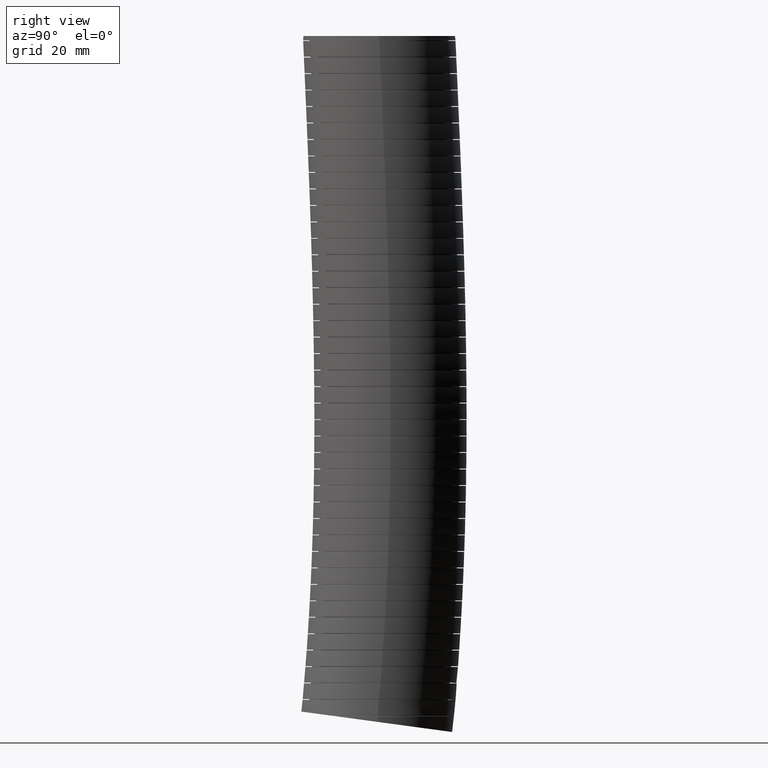
[diagram: clean part render]
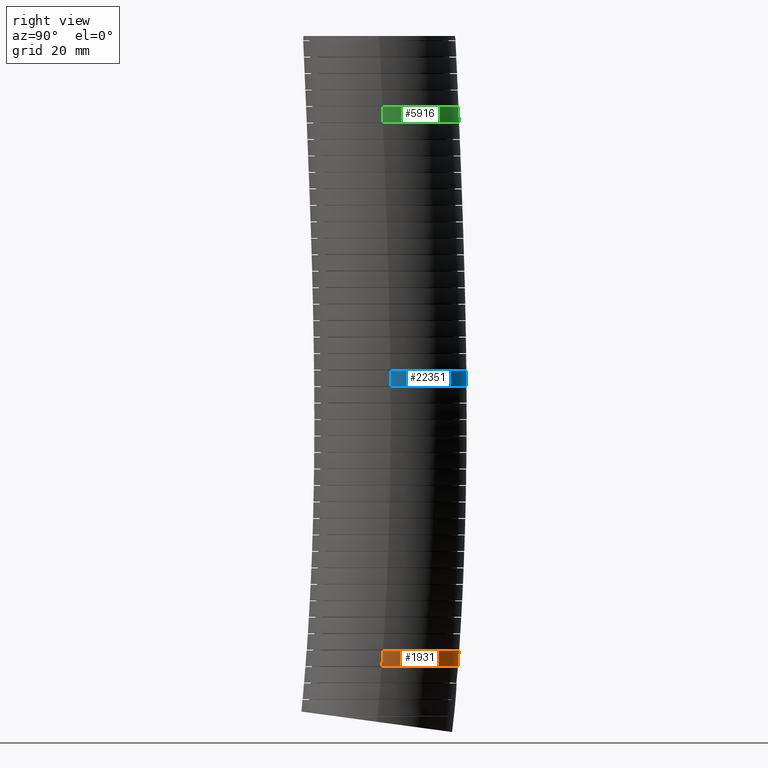
[diagram: same view with three faces highlighted in distinct colors, each labeled with its STEP entity id]
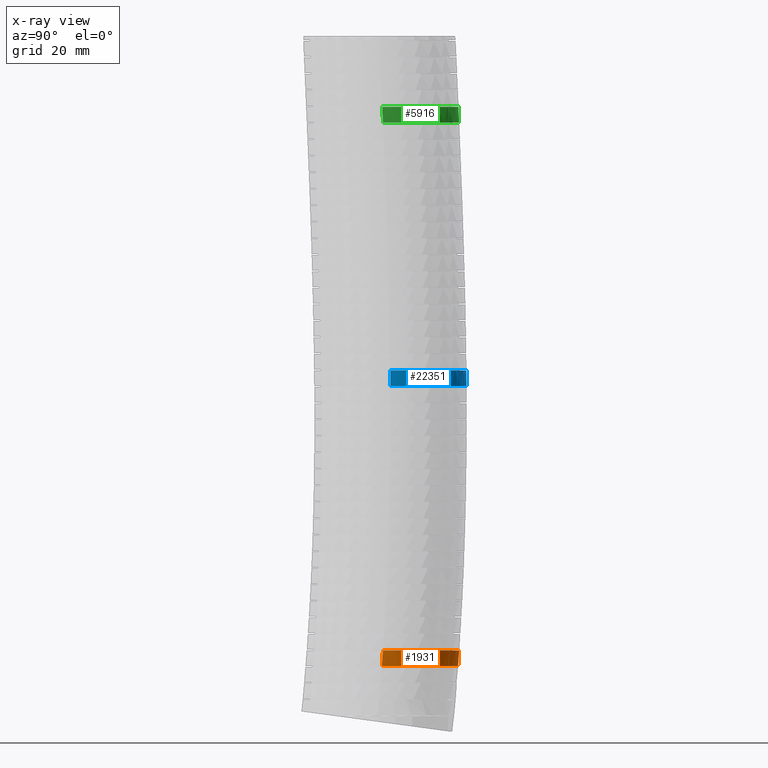
[diagram: x-ray of the same camera — body ghosted, the three highlighted faces saturated]
A machine part, right view with three faces highlighted in distinct colors.
The next image is the same camera in x-ray (body ghosted, the three faces saturated) — at least one of them is partly hidden behind the body in this view.
Their STEP definitions:

[orange] entity #1931 — the highlighted face is a freeform B-spline surface patch.
#138 = CARTESIAN_POINT ( 'NONE',  ( -1.037523085876495000, 0.2777032321146469800, -8.794286011987955100 ) ) ;
#166 = CARTESIAN_POINT ( 'NONE',  ( -1.041327204061582400, 0.2606620540140788300, -8.794286011987956900 ) ) ;
#183 = CARTESIAN_POINT ( 'NONE',  ( -1.064999999999999700, 0.1061492041232180400, -8.794286011987956900 ) ) ;
#184 = CARTESIAN_POINT ( 'NONE',  ( -1.064999999999999900, 0.03633923143694525700, -8.794286011987955100 ) ) ;
#188 = CARTESIAN_POINT ( 'NONE',  ( -1.058222846338296100, 0.1752264063476081400, -8.794286011987958700 ) ) ;
#1931 = ADVANCED_FACE ( 'NONE', ( #8282 ), #8364, .T. ) ;
#1932 = EDGE_LOOP ( 'NONE', ( #1940, #1943, #1942, #2009 ) ) ;
#1936 = EDGE_CURVE ( 'NONE', #2296, #2617, #8437, .T. ) ;
#1940 = ORIENTED_EDGE ( 'NONE', *, *, #2298, .F. ) ;
#1942 = ORIENTED_EDGE ( 'NONE', *, *, #2597, .T. ) ;
#1943 = ORIENTED_EDGE ( 'NONE', *, *, #1936, .T. ) ;
#1998 = EDGE_CURVE ( 'NONE', #2201, #2299, #8937, .T. ) ;
#2009 = ORIENTED_EDGE ( 'NONE', *, *, #1998, .T. ) ;
#2120 = CARTESIAN_POINT ( 'NONE',  ( -0.4728539910982889600, 0.9945330605699743700, -8.794286011987955100 ) ) ;
#2123 = CARTESIAN_POINT ( 'NONE',  ( -0.3765709038503316500, 1.034595305951800900, -8.794286011987958700 ) ) ;
#2125 = CARTESIAN_POINT ( 'NONE',  ( -0.5340896145702106500, 0.9617454742534413700, -8.794286011987956900 ) ) ;
#2153 = CARTESIAN_POINT ( 'NONE',  ( -0.6068565358328023000, 0.9129841921202566100, -8.794286011987953300 ) ) ;
#2168 = CARTESIAN_POINT ( 'NONE',  ( -0.6212574102933065000, 0.9028098707092524500, -8.794286011987956900 ) ) ;
#2177 = CARTESIAN_POINT ( 'NONE',  ( -0.6631745993824692500, 0.8710696955548423700, -8.794286011987944500 ) ) ;
#2187 = CARTESIAN_POINT ( 'NONE',  ( -0.6494095925534816300, 0.8818555559413562300, -8.794286011987956900 ) ) ;
#2188 = CARTESIAN_POINT ( 'NONE',  ( -0.7549542797001659300, 0.7910283290404213100, -8.794286011987951600 ) ) ;
#2189 = CARTESIAN_POINT ( 'NONE',  ( -0.7035536812504714600, 0.8378031871339843800, -8.794286011987946200 ) ) ;
#2201 = VERTEX_POINT ( 'NONE', #11320 ) ;
#2296 = VERTEX_POINT ( 'NONE', #12835 ) ;
#2298 = EDGE_CURVE ( 'NONE', #2296, #2299, #12847, .T. ) ;
#2299 = VERTEX_POINT ( 'NONE', #12848 ) ;
#2597 = EDGE_CURVE ( 'NONE', #2617, #2201, #14747, .T. ) ;
#2617 = VERTEX_POINT ( 'NONE', #15022 ) ;
#8282 = FACE_OUTER_BOUND ( 'NONE', #1932, .T. ) ;
#8354 = CARTESIAN_POINT ( 'NONE',  ( 1.064999999999999900, -2.129999999999999900, 0.0000000000000000000 ) ) ;
#8355 = CARTESIAN_POINT ( 'NONE',  ( 1.064999999999999700, -0.02999999999999993000, -9.569999999999996700 ) ) ;
#8356 = CARTESIAN_POINT ( 'NONE',  ( 1.064999999999999700, -0.01282253193203170200, -9.380021792021830500 ) ) ;
#8357 = CARTESIAN_POINT ( 'NONE',  ( 1.064999999999999700, 0.1136175452062334300, -7.981628316551387500 ) ) ;
#8358 = CARTESIAN_POINT ( 'NONE',  ( 1.064999999999999500, 0.2122813731536103700, -4.795410929656176400 ) ) ;
#8359 = CARTESIAN_POINT ( 'NONE',  ( 1.064999999999999900, 0.07923988111738790300, -1.790019474294677300 ) ) ;
#8360 = CARTESIAN_POINT ( 'NONE',  ( 1.064999999999999900, 0.0000000000000000000, 0.0000000000000000000 ) ) ;
#8364 =( BOUNDED_SURFACE ( )  B_SPLINE_SURFACE ( 3, 3, ( 
 ( #8360, #8359, #8358, #8357, #8356, #8355 ),
 ( #8354, #8400, #8399, #8398, #8397, #8396 ),
 ( #8395, #8394, #8393, #8392, #8391, #8390 ),
 ( #8389, #8388, #8387, #8386, #8385, #8384 ),
 ( #8383, #8382, #8381, #8380, #8379, #8378 ),
 ( #8377, #8376, #8375, #8374, #8373, #8372 ),
 ( #8371, #8370, #8369, #8368, #8367, #8366 ) ),
 .UNSPECIFIED., .F., .F., .F. ) 
 B_SPLINE_SURFACE_WITH_KNOTS ( ( 4, 3, 4 ),
 ( 4, 1, 1, 4 ),
 ( 0.0000000000000000000, 0.5000000000000000000, 1.000000000000000000 ),
 ( 0.0000000000000000000, 0.5600000000000001600, 0.9402239691641354200, 1.000000000000000000 ),
 .UNSPECIFIED. ) 
 GEOMETRIC_REPRESENTATION_ITEM ( )  RATIONAL_B_SPLINE_SURFACE ( (
 ( 1.000000000000000000, 1.000000000000000000, 1.000000000000000200, 1.000000000000000200, 1.000000000000000200, 1.000000000000000200),
 ( 0.3333333333333333100, 0.3333333333333333100, 0.3333333333333332600, 0.3333333333333334300, 0.3333333333333333700, 0.3333333333333333700),
 ( 0.3333333333333333100, 0.3333333333333333100, 0.3333333333333332600, 0.3333333333333334300, 0.3333333333333333700, 0.3333333333333333700),
 ( 1.000000000000000000, 1.000000000000000000, 1.000000000000000200, 1.000000000000000200, 1.000000000000000200, 1.000000000000000200),
 ( 0.3333333333333333100, 0.3333333333333333100, 0.3333333333333332600, 0.3333333333333334300, 0.3333333333333333700, 0.3333333333333333700),
 ( 0.3333333333333333100, 0.3333333333333333100, 0.3333333333333332600, 0.3333333333333334300, 0.3333333333333333700, 0.3333333333333333700),
 ( 1.000000000000000000, 1.000000000000000000, 1.000000000000000200, 1.000000000000000200, 1.000000000000000200, 1.000000000000000200) ) ) 
 REPRESENTATION_ITEM ( '' )  SURFACE ( )  );
#8366 = CARTESIAN_POINT ( 'NONE',  ( 1.064999999999999700, -0.02999999999999993000, -9.569999999999996700 ) ) ;
#8367 = CARTESIAN_POINT ( 'NONE',  ( 1.064999999999999700, -0.01282253193203170200, -9.380021792021830500 ) ) ;
#8368 = CARTESIAN_POINT ( 'NONE',  ( 1.064999999999999700, 0.1136175452062334300, -7.981628316551387500 ) ) ;
#8369 = CARTESIAN_POINT ( 'NONE',  ( 1.064999999999999500, 0.2122813731536103700, -4.795410929656176400 ) ) ;
#8370 = CARTESIAN_POINT ( 'NONE',  ( 1.064999999999999900, 0.07923988111738790300, -1.790019474294677300 ) ) ;
#8371 = CARTESIAN_POINT ( 'NONE',  ( 1.064999999999999900, 0.0000000000000000000, 0.0000000000000000000 ) ) ;
#8372 = CARTESIAN_POINT ( 'NONE',  ( 1.064999999999999700, 2.080788144512650400, -9.855435472541238100 ) ) ;
#8373 = CARTESIAN_POINT ( 'NONE',  ( 1.064999999999999700, 2.098892687478189700, -9.655694098161024600 ) ) ;
#8374 = CARTESIAN_POINT ( 'NONE',  ( 1.064999999999999700, 2.232156786707371500, -8.185435810711052100 ) ) ;
#8375 = CARTESIAN_POINT ( 'NONE',  ( 1.064999999999999900, 2.345283078702082900, -4.843727318243294300 ) ) ;
#8376 = CARTESIAN_POINT ( 'NONE',  ( 1.065000000000000200, 2.210360350555081500, -1.808054899781085700 ) ) ;
#8377 = CARTESIAN_POINT ( 'NONE',  ( 1.064999999999999900, 2.129999999999999900, 0.0000000000000000000 ) ) ;
#8378 = CARTESIAN_POINT ( 'NONE',  ( -1.064999999999999700, 2.080788144512650400, -9.855435472541238100 ) ) ;
#8379 = CARTESIAN_POINT ( 'NONE',  ( -1.064999999999999700, 2.098892687478189700, -9.655694098161024600 ) ) ;
#8380 = CARTESIAN_POINT ( 'NONE',  ( -1.064999999999999500, 2.232156786707371500, -8.185435810711052100 ) ) ;
#8381 = CARTESIAN_POINT ( 'NONE',  ( -1.064999999999999500, 2.345283078702082900, -4.843727318243294300 ) ) ;
#8382 = CARTESIAN_POINT ( 'NONE',  ( -1.064999999999999900, 2.210360350555081500, -1.808054899781085700 ) ) ;
#8383 = CARTESIAN_POINT ( 'NONE',  ( -1.064999999999999900, 2.129999999999999900, 0.0000000000000000000 ) ) ;
#8384 = CARTESIAN_POINT ( 'NONE',  ( -1.064999999999999700, -0.02999999999999980100, -9.569999999999996700 ) ) ;
#8385 = CARTESIAN_POINT ( 'NONE',  ( -1.064999999999999700, -0.01282253193203157000, -9.380021792021830500 ) ) ;
#8386 = CARTESIAN_POINT ( 'NONE',  ( -1.064999999999999700, 0.1136175452062335600, -7.981628316551387500 ) ) ;
#8387 = CARTESIAN_POINT ( 'NONE',  ( -1.064999999999999500, 0.2122813731536105100, -4.795410929656176400 ) ) ;
#8388 = CARTESIAN_POINT ( 'NONE',  ( -1.064999999999999900, 0.07923988111738802800, -1.790019474294677300 ) ) ;
#8389 = CARTESIAN_POINT ( 'NONE',  ( -1.064999999999999900, 1.304248841091931100E-016, 0.0000000000000000000 ) ) ;
#8390 = CARTESIAN_POINT ( 'NONE',  ( -1.064999999999999900, -2.140788144512650400, -9.284564527458751800 ) ) ;
#8391 = CARTESIAN_POINT ( 'NONE',  ( -1.064999999999999900, -2.124537751342253000, -9.104349485882636400 ) ) ;
#8392 = CARTESIAN_POINT ( 'NONE',  ( -1.064999999999999700, -2.004921696294905200, -7.777820822391721100 ) ) ;
#8393 = CARTESIAN_POINT ( 'NONE',  ( -1.065000000000000400, -1.920720332394860500, -4.747094541069063900 ) ) ;
#8394 = CARTESIAN_POINT ( 'NONE',  ( -1.065000000000000200, -2.051880588320306000, -1.771984048808268300 ) ) ;
#8395 = CARTESIAN_POINT ( 'NONE',  ( -1.065000000000000200, -2.129999999999999900, 0.0000000000000000000 ) ) ;
#8396 = CARTESIAN_POINT ( 'NONE',  ( 1.064999999999999700, -2.140788144512650400, -9.284564527458751800 ) ) ;
#8397 = CARTESIAN_POINT ( 'NONE',  ( 1.064999999999999700, -2.124537751342253000, -9.104349485882636400 ) ) ;
#8398 = CARTESIAN_POINT ( 'NONE',  ( 1.064999999999999700, -2.004921696294905200, -7.777820822391721100 ) ) ;
#8399 = CARTESIAN_POINT ( 'NONE',  ( 1.064999999999999900, -1.920720332394860500, -4.747094541069063900 ) ) ;
#8400 = CARTESIAN_POINT ( 'NONE',  ( 1.065000000000000200, -2.051880588320306000, -1.771984048808268300 ) ) ;
#8401 = CARTESIAN_POINT ( 'NONE',  ( 0.06919337948822956700, 1.116332316551238700, -8.574905762962183400 ) ) ;
#8402 = CARTESIAN_POINT ( 'NONE',  ( 0.03423872353664190300, 1.118033091227101300, -8.574905762962185200 ) ) ;
#8403 = CARTESIAN_POINT ( 'NONE',  ( 0.01663664453746472500, 1.118454960866200900, -8.574905762962194100 ) ) ;
#8404 = CARTESIAN_POINT ( 'NONE',  ( -0.07116328704846555700, 1.118378777443590700, -8.574905762962190500 ) ) ;
#8405 = CARTESIAN_POINT ( 'NONE',  ( -0.1403125208008237600, 1.111432087305698000, -8.574905762962185200 ) ) ;
#8406 = CARTESIAN_POINT ( 'NONE',  ( -0.2424556984415224300, 1.091033145275420500, -8.574905762962188800 ) ) ;
#8407 = CARTESIAN_POINT ( 'NONE',  ( -0.2762380511919315700, 1.082558177510677200, -8.574905762962188800 ) ) ;
#8408 = CARTESIAN_POINT ( 'NONE',  ( -0.3265029319292827000, 1.067265898017196500, -8.574905762962190500 ) ) ;
#8409 = CARTESIAN_POINT ( 'NONE',  ( -0.3432349488279938800, 1.061720302589514300, -8.574905762962181700 ) ) ;
#8410 = CARTESIAN_POINT ( 'NONE',  ( -0.3762546479259564200, 1.049860328368389200, -8.574905762962181700 ) ) ;
#8411 = CARTESIAN_POINT ( 'NONE',  ( -0.3925564049421269000, 1.043544579614741100, -8.574905762962185200 ) ) ;
#8412 = CARTESIAN_POINT ( 'NONE',  ( -0.4730439924448315800, 1.010072741220094100, -8.574905762962185200 ) ) ;
#8413 = CARTESIAN_POINT ( 'NONE',  ( -0.5341953057853120500, 0.9772912679845039400, -8.574905762962181700 ) ) ;
#8414 = CARTESIAN_POINT ( 'NONE',  ( -0.6065939115595648800, 0.9288240866993591200, -8.574905762962181700 ) ) ;
#8415 = CARTESIAN_POINT ( 'NONE',  ( -0.6208697910323118800, 0.9187527690202786900, -8.574905762962190500 ) ) ;
#8416 = CARTESIAN_POINT ( 'NONE',  ( -0.6490065971684607600, 0.8978408947308852400, -8.574905762962187000 ) ) ;
#8417 = CARTESIAN_POINT ( 'NONE',  ( -0.6628941798663289300, 0.8869759660240688100, -8.574905762962188800 ) ) ;
#8418 = CARTESIAN_POINT ( 'NONE',  ( -0.7034922662421107000, 0.8535634967480516500, -8.574905762962187000 ) ) ;
#8419 = CARTESIAN_POINT ( 'NONE',  ( -0.7292679330719893400, 0.8301145733085748500, -8.574905762962188800 ) ) ;
#8420 = CARTESIAN_POINT ( 'NONE',  ( -0.8028334799520404600, 0.7563440198362100200, -8.574905762962188800 ) ) ;
#8421 = CARTESIAN_POINT ( 'NONE',  ( -0.8468979732673850300, 0.7026314357551064500, -8.574905762962194100 ) ) ;
#8422 = CARTESIAN_POINT ( 'NONE',  ( -0.8955624946090901000, 0.6296505913546475200, -8.574905762962190500 ) ) ;
#8423 = CARTESIAN_POINT ( 'NONE',  ( -0.9049750554609176100, 0.6147484992803974300, -8.574905762962185200 ) ) ;
#8424 = CARTESIAN_POINT ( 'NONE',  ( -0.9229426691559308200, 0.5846847159079183700, -8.574905762962181700 ) ) ;
#8425 = CARTESIAN_POINT ( 'NONE',  ( -0.9315256417769176600, 0.5694829678457681300, -8.574905762962185200 ) ) ;
#8426 = CARTESIAN_POINT ( 'NONE',  ( -0.9560922114059010600, 0.5233766951223320900, -8.574905762962183400 ) ) ;
#8427 = CARTESIAN_POINT ( 'NONE',  ( -0.9708962414624391400, 0.4919723205124571000, -8.574905762962179900 ) ) ;
#8428 = CARTESIAN_POINT ( 'NONE',  ( -0.9973943182012092700, 0.4278456935513595400, -8.574905762962181700 ) ) ;
#8429 = CARTESIAN_POINT ( 'NONE',  ( -1.009088401135461900, 0.3951234565621907800, -8.574905762962188800 ) ) ;
#8430 = CARTESIAN_POINT ( 'NONE',  ( -1.024257602720533200, 0.3450349817875638100, -8.574905762962185200 ) ) ;
#8431 = CARTESIAN_POINT ( 'NONE',  ( -1.028917980981635300, 0.3281710062556665300, -8.574905762962188800 ) ) ;
#8432 = CARTESIAN_POINT ( 'NONE',  ( -1.037431167995620700, 0.2941008418256301800, -8.574905762962188800 ) ) ;
#8433 = CARTESIAN_POINT ( 'NONE',  ( -1.041275329772099400, 0.2769176919162212900, -8.574905762962181700 ) ) ;
#8434 = CARTESIAN_POINT ( 'NONE',  ( -1.058271232116231300, 0.1910919413974236900, -8.574905762962183400 ) ) ;
#8435 = CARTESIAN_POINT ( 'NONE',  ( -1.064999999999999500, 0.1219955990691071900, -8.574905762962181700 ) ) ;
#8436 = CARTESIAN_POINT ( 'NONE',  ( -1.064999999999999500, 0.05247234558278168800, -8.574905762962179900 ) ) ;
#8437 = B_SPLINE_CURVE_WITH_KNOTS ( 'NONE', 3,
 ( #8436, #8435, #8434, #8433, #8432, #8431, #8430, #8429, #8428, #8427, #8426, #8425, #8424, #8423, #8422, #8421, #8420, #8419, #8418, #8417, #8416, #8415, #8414, #8413, #8412, #8411, #8410, #8409, #8408, #8407, #8406, #8405, #8404, #8403, #8402, #8401, #8484, #8483, #8482, #8481, #8480, #8479, #8478, #8477, #8476, #8475, #8474, #8473, #8472, #8471, #8470, #8469, #8468, #8467, #8466, #8465, #8464, #8463, #8462, #8461, #8460, #8459 ),
 .UNSPECIFIED., .F., .F.,
 ( 4, 2, 2, 2, 2, 2, 2, 2, 2, 2, 2, 2, 2, 2, 2, 2, 2, 2, 2, 2, 2, 2, 2, 2, 2, 2, 2, 2, 2, 2, 4 ),
 ( 0.08461977587749081000, 0.08990682770465578700, 0.09122859066144702000, 0.09255035361823826800, 0.09519387953182073500, 0.09783740544540321700, 0.09915916840219445000, 0.1004809313589856800, 0.1057679831861506200, 0.1084115090997331000, 0.1097332720565243300, 0.1110550350133155800, 0.1163420868404805900, 0.1176638497972718200, 0.1189856127540630800, 0.1216291386676455800, 0.1269161904948105700, 0.1282379534516018300, 0.1295597164083930600, 0.1322032423219755600, 0.1348467682355580500, 0.1374902941491405500, 0.1427773459763055400, 0.1454208718898880300, 0.1480643978034705300, 0.1533514496306355200, 0.1559949755442180400, 0.1586385014578005300, 0.1612820273713830300, 0.1639255532849655500, 0.1692126051121305400 ),
 .UNSPECIFIED. ) ;
#8459 = CARTESIAN_POINT ( 'NONE',  ( 1.064999999999999500, 0.05247234560982951000, -8.574905762770495000 ) ) ;
#8460 = CARTESIAN_POINT ( 'NONE',  ( 1.064999999999999500, 0.1228549510387997700, -8.574905762770493200 ) ) ;
#8461 = CARTESIAN_POINT ( 'NONE',  ( 1.058104542168312800, 0.1925097513435417900, -8.574905762962187000 ) ) ;
#8462 = CARTESIAN_POINT ( 'NONE',  ( 1.037456404371755100, 0.2959037355176025700, -8.574905762962187000 ) ) ;
#8463 = CARTESIAN_POINT ( 'NONE',  ( 1.028881685745031800, 0.3299403980640440700, -8.574905762962188800 ) ) ;
#8464 = CARTESIAN_POINT ( 'NONE',  ( 1.008601483519259400, 0.3965490894375323100, -8.574905762962188800 ) ) ;
#8465 = CARTESIAN_POINT ( 'NONE',  ( 0.9968762532696537900, 0.4292223170287461900, -8.574905762962183400 ) ) ;
#8466 = CARTESIAN_POINT ( 'NONE',  ( 0.9702868000109922100, 0.4933189843633972700, -8.574905762962187000 ) ) ;
#8467 = CARTESIAN_POINT ( 'NONE',  ( 0.9554226443862023900, 0.5247424509358341600, -8.574905762962194100 ) ) ;
#8468 = CARTESIAN_POINT ( 'NONE',  ( 0.9224957720980274700, 0.5863158791628106900, -8.574905762962190500 ) ) ;
#8469 = CARTESIAN_POINT ( 'NONE',  ( 0.9043229993892155600, 0.6166118950708416900, -8.574905762962185200 ) ) ;
#8470 = CARTESIAN_POINT ( 'NONE',  ( 0.8459772682188500000, 0.7038063075859141100, -8.574905762962187000 ) ) ;
#8471 = CARTESIAN_POINT ( 'NONE',  ( 0.8018949103554936500, 0.7574248327078271200, -8.574905762962188800 ) ) ;
#8472 = CARTESIAN_POINT ( 'NONE',  ( 0.7281187059621229100, 0.8311948645785373100, -8.574905762962183400 ) ) ;
#8473 = CARTESIAN_POINT ( 'NONE',  ( 0.7022421961551228400, 0.8546674218535766900, -8.574905762962183400 ) ) ;
#8474 = CARTESIAN_POINT ( 'NONE',  ( 0.6478274865550001100, 0.8992968887229542100, -8.574905762962181700 ) ) ;
#8475 = CARTESIAN_POINT ( 'NONE',  ( 0.6197340737701514400, 0.9200879625081778100, -8.574905762962181700 ) ) ;
#8476 = CARTESIAN_POINT ( 'NONE',  ( 0.5329432204769395400, 0.9780041732068240900, -8.574905762962181700 ) ) ;
#8477 = CARTESIAN_POINT ( 'NONE',  ( 0.4717338654786566400, 1.010734307374534100, -8.574905762962179900 ) ) ;
#8478 = CARTESIAN_POINT ( 'NONE',  ( 0.3748136187114284900, 1.050862684532906300, -8.574905762962181700 ) ) ;
#8479 = CARTESIAN_POINT ( 'NONE',  ( 0.3415407982785311800, 1.062747804753668900, -8.574905762962188800 ) ) ;
#8480 = CARTESIAN_POINT ( 'NONE',  ( 0.2746980765926706500, 1.082966910566861300, -8.574905762962185200 ) ) ;
#8481 = CARTESIAN_POINT ( 'NONE',  ( 0.2409672519127398800, 1.091379325876743200, -8.574905762962187000 ) ) ;
#8482 = CARTESIAN_POINT ( 'NONE',  ( 0.1728982432637244900, 1.104873323742884100, -8.574905762962185200 ) ) ;
#8483 = CARTESIAN_POINT ( 'NONE',  ( 0.1385600462541376200, 1.109954834783431800, -8.574905762962187000 ) ) ;
#8484 = CARTESIAN_POINT ( 'NONE',  ( 0.08659265936249298200, 1.115053903862285100, -8.574905762962185200 ) ) ;
#8631 = CARTESIAN_POINT ( 'NONE',  ( -0.3437329881498163400, 1.046418666586257400, -8.794286011987964000 ) ) ;
#8904 = CARTESIAN_POINT ( 'NONE',  ( -0.2933244988617203500, 1.061782925761581600, -8.794286011987962200 ) ) ;
#8905 = CARTESIAN_POINT ( 'NONE',  ( -0.2763561545551741500, 1.066497439129027600, -8.794286011987955100 ) ) ;
#8906 = CARTESIAN_POINT ( 'NONE',  ( -0.2424079510574007100, 1.075033555982551000, -8.794286011987955100 ) ) ;
#8907 = CARTESIAN_POINT ( 'NONE',  ( -0.2253839360180087400, 1.078869068695381000, -8.794286011987951600 ) ) ;
#8908 = CARTESIAN_POINT ( 'NONE',  ( -0.1400181974959781000, 1.095917727968717600, -8.794286011987955100 ) ) ;
#8909 = CARTESIAN_POINT ( 'NONE',  ( -0.07094651156724426900, 1.102805061821070700, -8.794286011987956900 ) ) ;
#8910 = CARTESIAN_POINT ( 'NONE',  ( 0.03384078261024750500, 1.102912284282587100, -8.794286011987953300 ) ) ;
#8911 = CARTESIAN_POINT ( 'NONE',  ( 0.06914308879693908900, 1.101203348240692900, -8.794286011987958700 ) ) ;
#8912 = CARTESIAN_POINT ( 'NONE',  ( 0.1387564305809213500, 1.094367109378917600, -8.794286011987956900 ) ) ;
#8913 = CARTESIAN_POINT ( 'NONE',  ( 0.1731801057589594500, 1.089257578839526000, -8.794286011987951600 ) ) ;
#8914 = CARTESIAN_POINT ( 'NONE',  ( 0.2753276653374133700, 1.068967462253314700, -8.794286011987953300 ) ) ;
#8915 = CARTESIAN_POINT ( 'NONE',  ( 0.3419633819599410300, 1.048864226608692100, -8.794286011987956900 ) ) ;
#8916 = CARTESIAN_POINT ( 'NONE',  ( 0.4720360043842365400, 0.9950009619381142700, -8.794286011987955100 ) ) ;
#8917 = CARTESIAN_POINT ( 'NONE',  ( 0.5333437440943794600, 0.9621281380776589600, -8.794286011987953300 ) ) ;
#8918 = CARTESIAN_POINT ( 'NONE',  ( 0.6199417812265020100, 0.9042724627009346400, -8.794286011987953300 ) ) ;
#8919 = CARTESIAN_POINT ( 'NONE',  ( 0.6479072132563855600, 0.8835522321516010600, -8.794286011987956900 ) ) ;
#8920 = CARTESIAN_POINT ( 'NONE',  ( 0.7019958889358314200, 0.8391763857486606000, -8.794286011987956900 ) ) ;
#8921 = CARTESIAN_POINT ( 'NONE',  ( 0.7281752865290346300, 0.8154380039837225700, -8.794286011987951600 ) ) ;
#8922 = CARTESIAN_POINT ( 'NONE',  ( 0.8022245292411707100, 0.7413273311555558200, -8.794286011987953300 ) ) ;
#8923 = CARTESIAN_POINT ( 'NONE',  ( 0.8462368401615704100, 0.6876567237656152600, -8.794286011987956900 ) ) ;
#8924 = CARTESIAN_POINT ( 'NONE',  ( 0.8946229075826118700, 0.6152892627433790300, -8.794286011987953300 ) ) ;
#8925 = CARTESIAN_POINT ( 'NONE',  ( 0.9039656724777402900, 0.6005494353400047100, -8.794286011987962200 ) ) ;
#8926 = CARTESIAN_POINT ( 'NONE',  ( 0.9219717055068151800, 0.5705286692504806200, -8.794286011987960400 ) ) ;
#8927 = CARTESIAN_POINT ( 'NONE',  ( 0.9306566968348817200, 0.5552060979982820200, -8.794286011987956900 ) ) ;
#8928 = CARTESIAN_POINT ( 'NONE',  ( 0.9554963916117983300, 0.5087358527609163700, -8.794286011987956900 ) ) ;
#8929 = CARTESIAN_POINT ( 'NONE',  ( 0.9704018056822983900, 0.4771799849048915500, -8.794286011987953300 ) ) ;
#8930 = CARTESIAN_POINT ( 'NONE',  ( 1.010311257148557500, 0.3808396783803208500, -8.794286011987949800 ) ) ;
#8931 = CARTESIAN_POINT ( 'NONE',  ( 1.030553868396552500, 0.3143983230668380700, -8.794286011987953300 ) ) ;
#8932 = CARTESIAN_POINT ( 'NONE',  ( 1.051151446441319900, 0.2113377265442825700, -8.794286011987956900 ) ) ;
#8933 = CARTESIAN_POINT ( 'NONE',  ( 1.056356634569473900, 0.1764246504434675800, -8.794286011987953300 ) ) ;
#8934 = CARTESIAN_POINT ( 'NONE',  ( 1.063264502952365300, 0.1065973295384879300, -8.794286011987956900 ) ) ;
#8935 = CARTESIAN_POINT ( 'NONE',  ( 1.064999999999999500, 0.07154055030414974100, -8.794286011795970000 ) ) ;
#8936 = CARTESIAN_POINT ( 'NONE',  ( 1.064999999999999500, 0.03633923146633905700, -8.794286011795970000 ) ) ;
#8937 = B_SPLINE_CURVE_WITH_KNOTS ( 'NONE', 3,
 ( #8936, #8935, #8934, #8933, #8932, #8931, #8930, #8929, #8928, #8927, #8926, #8925, #8924, #8923, #8922, #8921, #8920, #8919, #8918, #8917, #8916, #8915, #8914, #8913, #8912, #8911, #8910, #8909, #8908, #8907, #8906, #8905, #8904, #8631, #2123, #2120, #2125, #2153, #2168, #2187, #2177, #2189, #2188, #24577, #21367, #21810, #22034, #21837, #22587, #22888, #23184, #23444, #23865, #24578, #138, #166, #188, #183, #184 ),
 .UNSPECIFIED., .F., .F.,
 ( 4, 2, 2, 2, 2, 2, 2, 2, 2, 2, 2, 2, 2, 2, 2, 2, 2, 2, 2, 2, 2, 1, 2, 2, 2, 2, 2, 2, 2, 4 ),
 ( 0.0000000000000000000, 0.002673085893718374000, 0.005346171787436746300, 0.01069234357487349100, 0.01336542946859186500, 0.01470197241545105300, 0.01603851536231023700, 0.02138468714974697800, 0.02405777304346534700, 0.02673085893718370900, 0.03207703072462045300, 0.03742320251205719800, 0.04009628840577557400, 0.04276937429949394200, 0.04811554608693069400, 0.04945208903378987100, 0.05078863198064906300, 0.05346171787436743800, 0.05880788966180419700, 0.06014443260866338100, 0.06148097555552256600, 0.06415406144924094800, 0.06682714734295933100, 0.06816369028981852900, 0.06950023323667771400, 0.07484640502411447900, 0.07751949091783287600, 0.07885603386469206000, 0.08019257681155124400, 0.08553874859898803800 ),
 .UNSPECIFIED. ) ;
#11320 = CARTESIAN_POINT ( 'NONE',  ( 1.064999999999999500, 0.03633923146633905700, -8.794286011795970000 ) ) ;
#12835 = CARTESIAN_POINT ( 'NONE',  ( -1.064999999999999500, 0.05247234558278168800, -8.574905762962179900 ) ) ;
#12843 = CARTESIAN_POINT ( 'NONE',  ( -1.064999999999999900, 0.03633923143694525700, -8.794286011987955100 ) ) ;
#12844 = CARTESIAN_POINT ( 'NONE',  ( -1.064999999999999700, 0.04193661046370392200, -8.721168634149538700 ) ) ;
#12845 = CARTESIAN_POINT ( 'NONE',  ( -1.064999999999999700, 0.04731246705810163200, -8.648041805628977800 ) ) ;
#12846 = CARTESIAN_POINT ( 'NONE',  ( -1.064999999999999500, 0.05247234558278168800, -8.574905762962179900 ) ) ;
#12847 = B_SPLINE_CURVE_WITH_KNOTS ( 'NONE', 3,
 ( #12846, #12845, #12844, #12843 ),
 .UNSPECIFIED., .F., .F.,
 ( 4, 4 ),
 ( 0.8956657082593153500, 0.9186582995933471100 ),
 .UNSPECIFIED. ) ;
#12848 = CARTESIAN_POINT ( 'NONE',  ( -1.064999999999999900, 0.03633923143694525700, -8.794286011987955100 ) ) ;
#14739 = CARTESIAN_POINT ( 'NONE',  ( 1.064999999999999500, 0.03633923146633905700, -8.794286011795970000 ) ) ;
#14740 = CARTESIAN_POINT ( 'NONE',  ( 1.064999999999999700, 0.04193661047808324600, -8.721168633956592600 ) ) ;
#14741 = CARTESIAN_POINT ( 'NONE',  ( 1.064999999999999700, 0.04731246707208358600, -8.648041805436188100 ) ) ;
#14742 = CARTESIAN_POINT ( 'NONE',  ( 1.064999999999999500, 0.05247234560982951000, -8.574905762770495000 ) ) ;
#14747 = B_SPLINE_CURVE_WITH_KNOTS ( 'NONE', 3,
 ( #14742, #14741, #14740, #14739 ),
 .UNSPECIFIED., .F., .F.,
 ( 4, 4 ),
 ( 0.8956657082391286100, 0.9186582995731058500 ),
 .UNSPECIFIED. ) ;
#15022 = CARTESIAN_POINT ( 'NONE',  ( 1.064999999999999500, 0.05247234560982951000, -8.574905762770495000 ) ) ;
#21367 = CARTESIAN_POINT ( 'NONE',  ( -0.8346777834728363900, 0.6990230740053038300, -8.794286011987958700 ) ) ;
#21810 = CARTESIAN_POINT ( 'NONE',  ( -0.8454146242551976400, 0.6852322276791222900, -8.794286011987953300 ) ) ;
#21837 = CARTESIAN_POINT ( 'NONE',  ( -0.8764019399815290400, 0.6425996515305543200, -8.794286011987956900 ) ) ;
#22034 = CARTESIAN_POINT ( 'NONE',  ( -0.8662681566841286000, 0.6570351330293529000, -8.794286011987951600 ) ) ;
#22587 = CARTESIAN_POINT ( 'NONE',  ( -0.9249754208767919600, 0.5696399392398603400, -8.794286011987955100 ) ) ;
#22888 = CARTESIAN_POINT ( 'NONE',  ( -0.9575882187103006400, 0.5082961714992887400, -8.794286011987955100 ) ) ;
#23184 = CARTESIAN_POINT ( 'NONE',  ( -0.9973901324419430800, 0.4119364481348759000, -8.794286011987953300 ) ) ;
#23444 = CARTESIAN_POINT ( 'NONE',  ( -1.009126962907735100, 0.3790873220759677900, -8.794286011987951600 ) ) ;
#23865 = CARTESIAN_POINT ( 'NONE',  ( -1.024367057380592300, 0.3286867197819879900, -8.794286011987955100 ) ) ;
#24577 = CARTESIAN_POINT ( 'NONE',  ( -0.8015532784723021800, 0.7394886267154587900, -8.794286011987956900 ) ) ;
#24578 = CARTESIAN_POINT ( 'NONE',  ( -1.029050560497575900, 0.3116921382499068200, -8.794286011987953300 ) ) ;

[blue] entity #22351 — the highlighted face is a freeform B-spline surface patch.
#178 = EDGE_CURVE ( 'NONE', #6545, #6266, #3368, .T. ) ;
#3363 = CARTESIAN_POINT ( 'NONE',  ( 1.064999999999999500, 0.1559834414358690900, -4.887276595298364300 ) ) ;
#3364 = CARTESIAN_POINT ( 'NONE',  ( 1.064999999999999700, 0.1554573843744923300, -4.813951444005228500 ) ) ;
#3365 = CARTESIAN_POINT ( 'NONE',  ( 1.064999999999999700, 0.1548085450741917600, -4.740621054525338900 ) ) ;
#3366 = CARTESIAN_POINT ( 'NONE',  ( 1.064999999999999700, 0.1540424557824620900, -4.667285662878034800 ) ) ;
#3368 = B_SPLINE_CURVE_WITH_KNOTS ( 'NONE', 3,
 ( #3366, #3365, #3364, #3363 ),
 .UNSPECIFIED., .F., .F.,
 ( 4, 4 ),
 ( 0.4869478169750216500, 0.5099236496968021500 ),
 .UNSPECIFIED. ) ;
#6266 = VERTEX_POINT ( 'NONE', #16560 ) ;
#6428 = VERTEX_POINT ( 'NONE', #16676 ) ;
#6485 = EDGE_CURVE ( 'NONE', #6428, #6532, #16673, .T. ) ;
#6532 = VERTEX_POINT ( 'NONE', #16675 ) ;
#6545 = VERTEX_POINT ( 'NONE', #16674 ) ;
#16560 = CARTESIAN_POINT ( 'NONE',  ( 1.064999999999999500, 0.1559834414358690900, -4.887276595298364300 ) ) ;
#16669 = CARTESIAN_POINT ( 'NONE',  ( -1.064999999999999700, 0.1559834414386222500, -4.887276595490228600 ) ) ;
#16670 = CARTESIAN_POINT ( 'NONE',  ( -1.064999999999999700, 0.1554573843760828100, -4.813951444197054600 ) ) ;
#16671 = CARTESIAN_POINT ( 'NONE',  ( -1.064999999999999700, 0.1548085450759909800, -4.740621054717114400 ) ) ;
#16672 = CARTESIAN_POINT ( 'NONE',  ( -1.064999999999999700, 0.1540424557864673600, -4.667285663069734800 ) ) ;
#16673 = B_SPLINE_CURVE_WITH_KNOTS ( 'NONE', 3,
 ( #16672, #16671, #16670, #16669 ),
 .UNSPECIFIED., .F., .F.,
 ( 4, 4 ),
 ( 0.4869478169950437500, 0.5099236497168430100 ),
 .UNSPECIFIED. ) ;
#16674 = CARTESIAN_POINT ( 'NONE',  ( 1.064999999999999700, 0.1540424557824620900, -4.667285662878034800 ) ) ;
#16675 = CARTESIAN_POINT ( 'NONE',  ( -1.064999999999999700, 0.1559834414386222500, -4.887276595490228600 ) ) ;
#16676 = CARTESIAN_POINT ( 'NONE',  ( -1.064999999999999700, 0.1540424557864673600, -4.667285663069734800 ) ) ;
#22346 = ORIENTED_EDGE ( 'NONE', *, *, #22475, .T. ) ;
#22351 = ADVANCED_FACE ( 'NONE', ( #23730 ), #23759, .T. ) ;
#22445 = ORIENTED_EDGE ( 'NONE', *, *, #22456, .T. ) ;
#22456 = EDGE_CURVE ( 'NONE', #6428, #6545, #23886, .T. ) ;
#22475 = EDGE_CURVE ( 'NONE', #6266, #6532, #24004, .T. ) ;
#22516 = ORIENTED_EDGE ( 'NONE', *, *, #6485, .F. ) ;
#22518 = EDGE_LOOP ( 'NONE', ( #22516, #22445, #22561, #22346 ) ) ;
#22561 = ORIENTED_EDGE ( 'NONE', *, *, #178, .T. ) ;
#23730 = FACE_OUTER_BOUND ( 'NONE', #22518, .T. ) ;
#23741 = CARTESIAN_POINT ( 'NONE',  ( 1.064999999999999700, -2.004921696294905200, -7.777820822391721100 ) ) ;
#23742 = CARTESIAN_POINT ( 'NONE',  ( 1.064999999999999900, -1.920720332394860500, -4.747094541069063900 ) ) ;
#23743 = CARTESIAN_POINT ( 'NONE',  ( 1.065000000000000200, -2.051880588320306000, -1.771984048808268300 ) ) ;
#23744 = CARTESIAN_POINT ( 'NONE',  ( 1.064999999999999900, -2.129999999999999900, 0.0000000000000000000 ) ) ;
#23745 = CARTESIAN_POINT ( 'NONE',  ( 1.064999999999999700, -0.02999999999999993000, -9.569999999999996700 ) ) ;
#23746 = CARTESIAN_POINT ( 'NONE',  ( 1.064999999999999700, -0.01282253193203170200, -9.380021792021830500 ) ) ;
#23747 = CARTESIAN_POINT ( 'NONE',  ( 1.064999999999999700, 0.1136175452062334300, -7.981628316551387500 ) ) ;
#23748 = CARTESIAN_POINT ( 'NONE',  ( 1.064999999999999500, 0.2122813731536103700, -4.795410929656176400 ) ) ;
#23749 = CARTESIAN_POINT ( 'NONE',  ( 1.064999999999999900, 0.07923988111738790300, -1.790019474294677300 ) ) ;
#23750 = CARTESIAN_POINT ( 'NONE',  ( 1.064999999999999900, 0.0000000000000000000, 0.0000000000000000000 ) ) ;
#23759 =( BOUNDED_SURFACE ( )  B_SPLINE_SURFACE ( 3, 3, ( 
 ( #23750, #23749, #23748, #23747, #23746, #23745 ),
 ( #23744, #23743, #23742, #23741, #23796, #23795 ),
 ( #23794, #23793, #23792, #23791, #23790, #23789 ),
 ( #23788, #23787, #23786, #23785, #23784, #23783 ),
 ( #23782, #23781, #23780, #23779, #23778, #23777 ),
 ( #23776, #23775, #23774, #23773, #23772, #23771 ),
 ( #23770, #23769, #23768, #23767, #23766, #23765 ) ),
 .UNSPECIFIED., .F., .F., .F. ) 
 B_SPLINE_SURFACE_WITH_KNOTS ( ( 4, 3, 4 ),
 ( 4, 1, 1, 4 ),
 ( 0.0000000000000000000, 0.5000000000000000000, 1.000000000000000000 ),
 ( 0.0000000000000000000, 0.5600000000000001600, 0.9402239691641354200, 1.000000000000000000 ),
 .UNSPECIFIED. ) 
 GEOMETRIC_REPRESENTATION_ITEM ( )  RATIONAL_B_SPLINE_SURFACE ( (
 ( 1.000000000000000000, 1.000000000000000000, 1.000000000000000200, 1.000000000000000200, 1.000000000000000200, 1.000000000000000200),
 ( 0.3333333333333333100, 0.3333333333333333100, 0.3333333333333332600, 0.3333333333333334300, 0.3333333333333333700, 0.3333333333333333700),
 ( 0.3333333333333333100, 0.3333333333333333100, 0.3333333333333332600, 0.3333333333333334300, 0.3333333333333333700, 0.3333333333333333700),
 ( 1.000000000000000000, 1.000000000000000000, 1.000000000000000200, 1.000000000000000200, 1.000000000000000200, 1.000000000000000200),
 ( 0.3333333333333333100, 0.3333333333333333100, 0.3333333333333332600, 0.3333333333333334300, 0.3333333333333333700, 0.3333333333333333700),
 ( 0.3333333333333333100, 0.3333333333333333100, 0.3333333333333332600, 0.3333333333333334300, 0.3333333333333333700, 0.3333333333333333700),
 ( 1.000000000000000000, 1.000000000000000000, 1.000000000000000200, 1.000000000000000200, 1.000000000000000200, 1.000000000000000200) ) ) 
 REPRESENTATION_ITEM ( '' )  SURFACE ( )  );
#23765 = CARTESIAN_POINT ( 'NONE',  ( 1.064999999999999700, -0.02999999999999993000, -9.569999999999996700 ) ) ;
#23766 = CARTESIAN_POINT ( 'NONE',  ( 1.064999999999999700, -0.01282253193203170200, -9.380021792021830500 ) ) ;
#23767 = CARTESIAN_POINT ( 'NONE',  ( 1.064999999999999700, 0.1136175452062334300, -7.981628316551387500 ) ) ;
#23768 = CARTESIAN_POINT ( 'NONE',  ( 1.064999999999999500, 0.2122813731536103700, -4.795410929656176400 ) ) ;
#23769 = CARTESIAN_POINT ( 'NONE',  ( 1.064999999999999900, 0.07923988111738790300, -1.790019474294677300 ) ) ;
#23770 = CARTESIAN_POINT ( 'NONE',  ( 1.064999999999999900, 0.0000000000000000000, 0.0000000000000000000 ) ) ;
#23771 = CARTESIAN_POINT ( 'NONE',  ( 1.064999999999999700, 2.080788144512650400, -9.855435472541238100 ) ) ;
#23772 = CARTESIAN_POINT ( 'NONE',  ( 1.064999999999999700, 2.098892687478189700, -9.655694098161024600 ) ) ;
#23773 = CARTESIAN_POINT ( 'NONE',  ( 1.064999999999999700, 2.232156786707371500, -8.185435810711052100 ) ) ;
#23774 = CARTESIAN_POINT ( 'NONE',  ( 1.064999999999999900, 2.345283078702082900, -4.843727318243294300 ) ) ;
#23775 = CARTESIAN_POINT ( 'NONE',  ( 1.065000000000000200, 2.210360350555081500, -1.808054899781085700 ) ) ;
#23776 = CARTESIAN_POINT ( 'NONE',  ( 1.064999999999999900, 2.129999999999999900, 0.0000000000000000000 ) ) ;
#23777 = CARTESIAN_POINT ( 'NONE',  ( -1.064999999999999700, 2.080788144512650400, -9.855435472541238100 ) ) ;
#23778 = CARTESIAN_POINT ( 'NONE',  ( -1.064999999999999700, 2.098892687478189700, -9.655694098161024600 ) ) ;
#23779 = CARTESIAN_POINT ( 'NONE',  ( -1.064999999999999500, 2.232156786707371500, -8.185435810711052100 ) ) ;
#23780 = CARTESIAN_POINT ( 'NONE',  ( -1.064999999999999500, 2.345283078702082900, -4.843727318243294300 ) ) ;
#23781 = CARTESIAN_POINT ( 'NONE',  ( -1.064999999999999900, 2.210360350555081500, -1.808054899781085700 ) ) ;
#23782 = CARTESIAN_POINT ( 'NONE',  ( -1.064999999999999900, 2.129999999999999900, 0.0000000000000000000 ) ) ;
#23783 = CARTESIAN_POINT ( 'NONE',  ( -1.064999999999999700, -0.02999999999999980100, -9.569999999999996700 ) ) ;
#23784 = CARTESIAN_POINT ( 'NONE',  ( -1.064999999999999700, -0.01282253193203157000, -9.380021792021830500 ) ) ;
#23785 = CARTESIAN_POINT ( 'NONE',  ( -1.064999999999999700, 0.1136175452062335600, -7.981628316551387500 ) ) ;
#23786 = CARTESIAN_POINT ( 'NONE',  ( -1.064999999999999500, 0.2122813731536105100, -4.795410929656176400 ) ) ;
#23787 = CARTESIAN_POINT ( 'NONE',  ( -1.064999999999999900, 0.07923988111738802800, -1.790019474294677300 ) ) ;
#23788 = CARTESIAN_POINT ( 'NONE',  ( -1.064999999999999900, 1.304248841091931100E-016, 0.0000000000000000000 ) ) ;
#23789 = CARTESIAN_POINT ( 'NONE',  ( -1.064999999999999900, -2.140788144512650400, -9.284564527458751800 ) ) ;
#23790 = CARTESIAN_POINT ( 'NONE',  ( -1.064999999999999900, -2.124537751342253000, -9.104349485882636400 ) ) ;
#23791 = CARTESIAN_POINT ( 'NONE',  ( -1.064999999999999700, -2.004921696294905200, -7.777820822391721100 ) ) ;
#23792 = CARTESIAN_POINT ( 'NONE',  ( -1.065000000000000400, -1.920720332394860500, -4.747094541069063900 ) ) ;
#23793 = CARTESIAN_POINT ( 'NONE',  ( -1.065000000000000200, -2.051880588320306000, -1.771984048808268300 ) ) ;
#23794 = CARTESIAN_POINT ( 'NONE',  ( -1.065000000000000200, -2.129999999999999900, 0.0000000000000000000 ) ) ;
#23795 = CARTESIAN_POINT ( 'NONE',  ( 1.064999999999999700, -2.140788144512650400, -9.284564527458751800 ) ) ;
#23796 = CARTESIAN_POINT ( 'NONE',  ( 1.064999999999999700, -2.124537751342253000, -9.104349485882636400 ) ) ;
#23877 = CARTESIAN_POINT ( 'NONE',  ( -0.9972866109432602100, 0.5290848695589863700, -4.667285663069734800 ) ) ;
#23878 = CARTESIAN_POINT ( 'NONE',  ( -1.008997200357021100, 0.4963980098296783000, -4.667285663069734800 ) ) ;
#23879 = CARTESIAN_POINT ( 'NONE',  ( -1.024188713399105700, 0.4463615971592360100, -4.667285663069736600 ) ) ;
#23880 = CARTESIAN_POINT ( 'NONE',  ( -1.028856118812850200, 0.4295148075455856900, -4.667285663069735700 ) ) ;
#23881 = CARTESIAN_POINT ( 'NONE',  ( -1.037382448115504500, 0.3954786399476662400, -4.667285663069733900 ) ) ;
#23882 = CARTESIAN_POINT ( 'NONE',  ( -1.041233441382601900, 0.3783090784402760600, -4.667285663069733900 ) ) ;
#23883 = CARTESIAN_POINT ( 'NONE',  ( -1.058258849107371700, 0.2925537599200634900, -4.667285663069733900 ) ) ;
#23884 = CARTESIAN_POINT ( 'NONE',  ( -1.064999999999999500, 0.2235123163385104600, -4.667285663069734800 ) ) ;
#23885 = CARTESIAN_POINT ( 'NONE',  ( -1.064999999999999700, 0.1540424557864673600, -4.667285663069734800 ) ) ;
#23886 = B_SPLINE_CURVE_WITH_KNOTS ( 'NONE', 3,
 ( #23885, #23884, #23883, #23882, #23881, #23880, #23879, #23878, #23877, #23967, #23966, #23965, #23964, #23963, #23962, #23961, #23960, #23959, #23958, #23957, #23956, #23955, #23954, #23953, #23952, #23951, #23950, #23949, #23948, #23947, #23946, #23945, #23944, #23943, #23942, #23941, #23940, #23939, #23938, #23937, #23936, #23935, #23934, #23933, #23932, #23931, #23930, #23929, #23928, #23927, #23926, #23925, #23924, #23923, #23922, #23921, #23920, #23919, #23918, #24007, #24006, #24005 ),
 .UNSPECIFIED., .F., .F.,
 ( 4, 2, 2, 2, 2, 2, 2, 2, 2, 2, 2, 2, 2, 2, 2, 2, 2, 2, 2, 2, 2, 2, 2, 2, 2, 2, 2, 2, 2, 2, 4 ),
 ( 0.08454443044947156100, 0.08982737637569070100, 0.09114811285724547200, 0.09246884933880025700, 0.09511032230190984100, 0.09775179526501941200, 0.09907253174657419700, 0.1003932682281289800, 0.1056762141543481400, 0.1083176871174577100, 0.1096384235990124900, 0.1109591600805672900, 0.1162421060067864600, 0.1175628424883412600, 0.1188835789698960400, 0.1215250519330056400, 0.1268079978592248100, 0.1281287343407796200, 0.1294494708223344100, 0.1320909437854440000, 0.1347324167485535700, 0.1373738897116631700, 0.1426568356378823400, 0.1452983086009919100, 0.1479397815641015100, 0.1532227274903206800, 0.1558642004534302500, 0.1585056734165398200, 0.1611471463796493900, 0.1637886193427589600, 0.1690715652689781200 ),
 .UNSPECIFIED. ) ;
#23918 = CARTESIAN_POINT ( 'NONE',  ( 1.037408711738154700, 0.3972759118661817200, -4.667285663069733900 ) ) ;
#23919 = CARTESIAN_POINT ( 'NONE',  ( 1.028821028775727300, 0.4312773067341584300, -4.667285663069733900 ) ) ;
#23920 = CARTESIAN_POINT ( 'NONE',  ( 1.008511687974303200, 0.4978159194503522000, -4.667285663069733900 ) ) ;
#23921 = CARTESIAN_POINT ( 'NONE',  ( 0.9967705164651217100, 0.5304526888963050400, -4.667285663069736600 ) ) ;
#23922 = CARTESIAN_POINT ( 'NONE',  ( 0.9701473433783877100, 0.5944739809776568000, -4.667285663069736600 ) ) ;
#23923 = CARTESIAN_POINT ( 'NONE',  ( 0.9552654054869891300, 0.6258585290046836400, -4.667285663069734800 ) ) ;
#23924 = CARTESIAN_POINT ( 'NONE',  ( 0.9223018496872513700, 0.6873519148137432500, -4.667285663069734800 ) ) ;
#23925 = CARTESIAN_POINT ( 'NONE',  ( 0.9041103842916173900, 0.7176057336839406500, -4.667285663069739200 ) ) ;
#23926 = CARTESIAN_POINT ( 'NONE',  ( 0.8457181446325893200, 0.8046616426929368300, -4.667285663069739200 ) ) ;
#23927 = CARTESIAN_POINT ( 'NONE',  ( 0.8016100184574991300, 0.8581834294519773400, -4.667285663069733900 ) ) ;
#23928 = CARTESIAN_POINT ( 'NONE',  ( 0.7278091238240778100, 0.9318072890846547100, -4.667285663069734800 ) ) ;
#23929 = CARTESIAN_POINT ( 'NONE',  ( 0.7019267109454974100, 0.9552309292445742000, -4.667285663069733900 ) ) ;
#23930 = CARTESIAN_POINT ( 'NONE',  ( 0.6475060885992020000, 0.9997630956899054000, -4.667285663069734800 ) ) ;
#23931 = CARTESIAN_POINT ( 'NONE',  ( 0.6194117597381568800, 1.020507283526000300, -4.667285663069736600 ) ) ;
#23932 = CARTESIAN_POINT ( 'NONE',  ( 0.5326305131818917000, 1.078285809916661700, -4.667285663069736600 ) ) ;
#23933 = CARTESIAN_POINT ( 'NONE',  ( 0.4714414995990289200, 1.110929878972109400, -4.667285663069733900 ) ) ;
#23934 = CARTESIAN_POINT ( 'NONE',  ( 0.3745779719323346600, 1.150946617975433300, -4.667285663069733000 ) ) ;
#23935 = CARTESIAN_POINT ( 'NONE',  ( 0.3413228583251285400, 1.162799709615589500, -4.667285663069735700 ) ) ;
#23936 = CARTESIAN_POINT ( 'NONE',  ( 0.2745155413626493300, 1.182964300843009100, -4.667285663069733000 ) ) ;
#23937 = CARTESIAN_POINT ( 'NONE',  ( 0.2408057237594571100, 1.191353114019386900, -4.667285663069732100 ) ) ;
#23938 = CARTESIAN_POINT ( 'NONE',  ( 0.1727854828051757800, 1.204808561763397000, -4.667285663069732100 ) ) ;
#23939 = CARTESIAN_POINT ( 'NONE',  ( 0.1384750451923710000, 1.209875117444064500, -4.667285663069735700 ) ) ;
#23940 = CARTESIAN_POINT ( 'NONE',  ( 0.08655463442333952200, 1.214959531859413100, -4.667285663069736600 ) ) ;
#23941 = CARTESIAN_POINT ( 'NONE',  ( 0.06917190458255512200, 1.216234359719327700, -4.667285663069736600 ) ) ;
#23942 = CARTESIAN_POINT ( 'NONE',  ( 0.03425220179663753700, 1.217930838219982300, -4.667285663069736600 ) ) ;
#23943 = CARTESIAN_POINT ( 'NONE',  ( 0.01667130108787407900, 1.218352110204078900, -4.667285663069731200 ) ) ;
#23944 = CARTESIAN_POINT ( 'NONE',  ( -0.07107853807861848300, 1.218279759266431400, -4.667285663069733900 ) ) ;
#23945 = CARTESIAN_POINT ( 'NONE',  ( -0.1401810476173993300, 1.211353866014709600, -4.667285663069738400 ) ) ;
#23946 = CARTESIAN_POINT ( 'NONE',  ( -0.2422456383545636100, 1.191018931778400100, -4.667285663069736600 ) ) ;
#23947 = CARTESIAN_POINT ( 'NONE',  ( -0.2760003684433877100, 1.182570809350170600, -4.667285663069732100 ) ) ;
#23948 = CARTESIAN_POINT ( 'NONE',  ( -0.3262217959913134000, 1.167328397616876500, -4.667285663069732100 ) ) ;
#23949 = CARTESIAN_POINT ( 'NONE',  ( -0.3429398847994170100, 1.161800978617594700, -4.667285663069735700 ) ) ;
#23950 = CARTESIAN_POINT ( 'NONE',  ( -0.3759518690594602600, 1.149972227556167200, -4.667285663069737500 ) ) ;
#23951 = CARTESIAN_POINT ( 'NONE',  ( -0.3922497721766188800, 1.143672957044268700, -4.667285663069734800 ) ) ;
#23952 = CARTESIAN_POINT ( 'NONE',  ( -0.4727182055107656000, 1.110287944297353900, -4.667285663069735700 ) ) ;
#23953 = CARTESIAN_POINT ( 'NONE',  ( -0.5338545362962476800, 1.077589949319962800, -4.667285663069736600 ) ) ;
#23954 = CARTESIAN_POINT ( 'NONE',  ( -0.6062365801325203500, 1.029247824273798600, -4.667285663069736600 ) ) ;
#23955 = CARTESIAN_POINT ( 'NONE',  ( -0.6205092577488476900, 1.019202564868443700, -4.667285663069734800 ) ) ;
#23956 = CARTESIAN_POINT ( 'NONE',  ( -0.6486399370835894700, 0.9983450345287232500, -4.667285663069735700 ) ) ;
#23957 = CARTESIAN_POINT ( 'NONE',  ( -0.6625287788633759100, 0.9875053739426646900, -4.667285663069738400 ) ) ;
#23958 = CARTESIAN_POINT ( 'NONE',  ( -0.7031450258053649800, 0.9541578671635930800, -4.667285663069739200 ) ) ;
#23959 = CARTESIAN_POINT ( 'NONE',  ( -0.7289330287249007300, 0.9307534564605879400, -4.667285663069735700 ) ) ;
#23960 = CARTESIAN_POINT ( 'NONE',  ( -0.8025363883777828500, 0.8571200779587869700, -4.667285663069736600 ) ) ;
#23961 = CARTESIAN_POINT ( 'NONE',  ( -0.8466271732647993000, 0.8035037744616150300, -4.667285663069737500 ) ) ;
#23962 = CARTESIAN_POINT ( 'NONE',  ( -0.8953261279565161200, 0.7306496629949838000, -4.667285663069736600 ) ) ;
#23963 = CARTESIAN_POINT ( 'NONE',  ( -0.9047492871314665200, 0.7157676669158094000, -4.667285663069734800 ) ) ;
#23964 = CARTESIAN_POINT ( 'NONE',  ( -0.9227386275975711900, 0.6857413838681705200, -4.667285663069734800 ) ) ;
#23965 = CARTESIAN_POINT ( 'NONE',  ( -0.9313321606211486500, 0.6705582632678144300, -4.667285663069735700 ) ) ;
#23966 = CARTESIAN_POINT ( 'NONE',  ( -0.9559294781508123100, 0.6245074942203426800, -4.667285663069734800 ) ) ;
#23967 = CARTESIAN_POINT ( 'NONE',  ( -0.9707527688952470900, 0.5931396198287799400, -4.667285663069736600 ) ) ;
#23968 = CARTESIAN_POINT ( 'NONE',  ( -0.4724420870266934400, 1.112259858785561900, -4.887276595490228600 ) ) ;
#23969 = CARTESIAN_POINT ( 'NONE',  ( -0.3762302794989027000, 1.152168156797133400, -4.887276595490230400 ) ) ;
#23970 = CARTESIAN_POINT ( 'NONE',  ( -0.3434215929161249000, 1.163944382468402800, -4.887276595490228600 ) ) ;
#23971 = CARTESIAN_POINT ( 'NONE',  ( -0.2930662187278220700, 1.179246070524214300, -4.887276595490229500 ) ) ;
#23972 = CARTESIAN_POINT ( 'NONE',  ( -0.2761089516535216200, 1.183943445818066000, -4.887276595490230400 ) ) ;
#23973 = CARTESIAN_POINT ( 'NONE',  ( -0.2421875250792622800, 1.192447206423599400, -4.887276595490228600 ) ) ;
#23974 = CARTESIAN_POINT ( 'NONE',  ( -0.2251779047834345500, 1.196267946009457200, -4.887276595490226000 ) ) ;
#23975 = CARTESIAN_POINT ( 'NONE',  ( -0.1398891575438597800, 1.213250226407073500, -4.887276595490227700 ) ) ;
#23976 = CARTESIAN_POINT ( 'NONE',  ( -0.07089495638289171300, 1.220108016102979400, -4.887276595490228600 ) ) ;
#23977 = CARTESIAN_POINT ( 'NONE',  ( 0.03375062909852273600, 1.220219089166868100, -4.887276595490228600 ) ) ;
#23978 = CARTESIAN_POINT ( 'NONE',  ( 0.06900814832658064300, 1.218520137620609200, -4.887276595490231300 ) ) ;
#23979 = CARTESIAN_POINT ( 'NONE',  ( 0.1385651690841919500, 1.211714166298214900, -4.887276595490231300 ) ) ;
#23980 = CARTESIAN_POINT ( 'NONE',  ( 0.1729592585905170300, 1.206626170350459000, -4.887276595490230400 ) ) ;
#23981 = CARTESIAN_POINT ( 'NONE',  ( 0.2750143312900072400, 1.186421408769935000, -4.887276595490228600 ) ) ;
#23982 = CARTESIAN_POINT ( 'NONE',  ( 0.3415591847453538500, 1.166412374730340100, -4.887276595490232200 ) ) ;
#23983 = CARTESIAN_POINT ( 'NONE',  ( 0.4715400700883081700, 1.112767584754073000, -4.887276595490231300 ) ) ;
#23984 = CARTESIAN_POINT ( 'NONE',  ( 0.5328698928315391800, 1.079993714657917700, -4.887276595490230400 ) ) ;
#23985 = CARTESIAN_POINT ( 'NONE',  ( 0.6194572727251793600, 1.022333827120190500, -4.887276595490231300 ) ) ;
#23986 = CARTESIAN_POINT ( 'NONE',  ( 0.6474200250448412000, 1.001683423723632900, -4.887276595490228600 ) ) ;
#23987 = CARTESIAN_POINT ( 'NONE',  ( 0.7015055191026904300, 0.9574571929023303300, -4.887276595490228600 ) ) ;
#23988 = CARTESIAN_POINT ( 'NONE',  ( 0.7276989872317049000, 0.9337866214967504000, -4.887276595490228600 ) ) ;
#23989 = CARTESIAN_POINT ( 'NONE',  ( 0.8018109121172610800, 0.8598603319329797300, -4.887276595490227700 ) ) ;
#23990 = CARTESIAN_POINT ( 'NONE',  ( 0.8458663188137234300, 0.8063162159485651700, -4.887276595490230400 ) ) ;
#23991 = CARTESIAN_POINT ( 'NONE',  ( 0.8943070161500381600, 0.7341106050777482800, -4.887276595490227700 ) ) ;
#23992 = CARTESIAN_POINT ( 'NONE',  ( 0.9036607424002470700, 0.7194033338086736100, -4.887276595490227700 ) ) ;
#23993 = CARTESIAN_POINT ( 'NONE',  ( 0.9216887338288580800, 0.6894480293027954700, -4.887276595490230400 ) ) ;
#23994 = CARTESIAN_POINT ( 'NONE',  ( 0.9303837398006074000, 0.6741605595066153500, -4.887276595490230400 ) ) ;
#23995 = CARTESIAN_POINT ( 'NONE',  ( 0.9552683203261687100, 0.6277659550196577100, -4.887276595490228600 ) ) ;
#23996 = CARTESIAN_POINT ( 'NONE',  ( 0.9702015714242284700, 0.5962596096083777600, -4.887276595490228600 ) ) ;
#23997 = CARTESIAN_POINT ( 'NONE',  ( 1.010187884909476500, 0.5000650378172334400, -4.887276595490229500 ) ) ;
#23998 = CARTESIAN_POINT ( 'NONE',  ( 1.030473073049153100, 0.4337171370357830700, -4.887276595490227700 ) ) ;
#23999 = CARTESIAN_POINT ( 'NONE',  ( 1.051116869771487200, 0.3307895269413724200, -4.887276595490228600 ) ) ;
#24000 = CARTESIAN_POINT ( 'NONE',  ( 1.056335079249192800, 0.2959151861563142900, -4.887276595490225100 ) ) ;
#24001 = CARTESIAN_POINT ( 'NONE',  ( 1.063260057692736000, 0.2261653836895648200, -4.887276595490226000 ) ) ;
#24002 = CARTESIAN_POINT ( 'NONE',  ( 1.064999999999999100, 0.1911469191256606200, -4.887276595298363400 ) ) ;
#24003 = CARTESIAN_POINT ( 'NONE',  ( 1.064999999999999500, 0.1559834414358690900, -4.887276595298364300 ) ) ;
#24004 = B_SPLINE_CURVE_WITH_KNOTS ( 'NONE', 3,
 ( #24003, #24002, #24001, #24000, #23999, #23998, #23997, #23996, #23995, #23994, #23993, #23992, #23991, #23990, #23989, #23988, #23987, #23986, #23985, #23984, #23983, #23982, #23981, #23980, #23979, #23978, #23977, #23976, #23975, #23974, #23973, #23972, #23971, #23970, #23969, #23968, #24042, #24041, #24040, #24039, #24038, #24037, #24036, #24035, #24034, #24033, #24032, #24031, #24030, #24029, #24028, #24027, #24026, #24025, #24024, #24023, #24022, #24021, #24020 ),
 .UNSPECIFIED., .F., .F.,
 ( 4, 2, 2, 2, 2, 2, 2, 2, 2, 2, 2, 2, 2, 2, 2, 2, 2, 2, 2, 2, 2, 1, 2, 2, 2, 2, 2, 2, 2, 4 ),
 ( 0.0000000000000000000, 0.002670199229906615300, 0.005340398459813230600, 0.01068079691962646800, 0.01335099614953308200, 0.01468609576448638900, 0.01602119537943969700, 0.02136159383925288400, 0.02403179306915947600, 0.02670199229906606800, 0.03204239075887924800, 0.03738278921869243200, 0.04005298844859902400, 0.04272318767850561600, 0.04806358613831879900, 0.04939868575327209500, 0.05073378536822539800, 0.05340398459813198300, 0.05874438305794515300, 0.06007948267289844900, 0.06141458228785173800, 0.06408478151775831600, 0.06675498074766490800, 0.06809008036261819700, 0.06942517997757148600, 0.07476557843738462800, 0.07743577766729119200, 0.07877087728224448100, 0.08010597689719777000, 0.08544637535701091200 ),
 .UNSPECIFIED. ) ;
#24005 = CARTESIAN_POINT ( 'NONE',  ( 1.064999999999999700, 0.1540424557824620900, -4.667285662878034800 ) ) ;
#24006 = CARTESIAN_POINT ( 'NONE',  ( 1.064999999999999500, 0.2243709051170465200, -4.667285662878033900 ) ) ;
#24007 = CARTESIAN_POINT ( 'NONE',  ( 1.058091915577994600, 0.2939691908008750800, -4.667285663069734800 ) ) ;
#24020 = CARTESIAN_POINT ( 'NONE',  ( -1.064999999999999700, 0.1559834414386222500, -4.887276595490228600 ) ) ;
#24021 = CARTESIAN_POINT ( 'NONE',  ( -1.064999999999999500, 0.2257152836952322200, -4.887276595490224200 ) ) ;
#24022 = CARTESIAN_POINT ( 'NONE',  ( -1.058206212425237800, 0.2947126192050499300, -4.887276595490228600 ) ) ;
#24023 = CARTESIAN_POINT ( 'NONE',  ( -1.041271400128180000, 0.3800465237601592900, -4.887276595490228600 ) ) ;
#24024 = CARTESIAN_POINT ( 'NONE',  ( -1.037458510505379100, 0.3970672557814111100, -4.887276595490233100 ) ) ;
#24025 = CARTESIAN_POINT ( 'NONE',  ( -1.028966554045371600, 0.4310150735329619800, -4.887276595490233100 ) ) ;
#24026 = CARTESIAN_POINT ( 'NONE',  ( -1.024272310866545200, 0.4479888343756876500, -4.887276595490227700 ) ) ;
#24027 = CARTESIAN_POINT ( 'NONE',  ( -1.009001875753731100, 0.4983141398478657100, -4.887276595490229500 ) ) ;
#24028 = CARTESIAN_POINT ( 'NONE',  ( -0.9972430848203821500, 0.5311110161570956600, -4.887276595490227700 ) ) ;
#24029 = CARTESIAN_POINT ( 'NONE',  ( -0.9573721950322987600, 0.6273089473499551300, -4.887276595490227700 ) ) ;
#24030 = CARTESIAN_POINT ( 'NONE',  ( -0.9247093362891606300, 0.6885381872364810800, -4.887276595490226000 ) ) ;
#24031 = CARTESIAN_POINT ( 'NONE',  ( -0.8760732997991836900, 0.7613486856700078000, -4.887276595490226000 ) ) ;
#24032 = CARTESIAN_POINT ( 'NONE',  ( -0.8659278457587363800, 0.7757526131450182000, -4.887276595490230400 ) ) ;
#24033 = CARTESIAN_POINT ( 'NONE',  ( -0.8450547060251260000, 0.8038827490910491800, -4.887276595490230400 ) ) ;
#24034 = CARTESIAN_POINT ( 'NONE',  ( -0.8343086378347514000, 0.8176398678427981800, -4.887276595490227700 ) ) ;
#24035 = CARTESIAN_POINT ( 'NONE',  ( -0.8011584104690167000, 0.8580037661637591700, -4.887276595490227700 ) ) ;
#24036 = CARTESIAN_POINT ( 'NONE',  ( -0.7545303479650211600, 0.9094066893399616000, -4.887276595490232200 ) ) ;
#24037 = CARTESIAN_POINT ( 'NONE',  ( -0.7031135739116692900, 0.9560448694459309200, -4.887276595490226900 ) ) ;
#24038 = CARTESIAN_POINT ( 'NONE',  ( -0.6627282608337002900, 0.9892098951359900000, -4.887276595490224200 ) ) ;
#24039 = CARTESIAN_POINT ( 'NONE',  ( -0.6489621615348756300, 0.9999620986516554200, -4.887276595490231300 ) ) ;
#24040 = CARTESIAN_POINT ( 'NONE',  ( -0.6208099738178646200, 1.020849619735763300, -4.887276595490233100 ) ) ;
#24041 = CARTESIAN_POINT ( 'NONE',  ( -0.6064098029391144000, 1.030991062606216000, -4.887276595490232200 ) ) ;
#24042 = CARTESIAN_POINT ( 'NONE',  ( -0.5336519328515942900, 1.079591551277131200, -4.887276595490231300 ) ) ;

[green] entity #5916 — the highlighted face is a freeform B-spline surface patch.
#253 = EDGE_CURVE ( 'NONE', #22151, #22243, #3941, .T. ) ;
#255 = ORIENTED_EDGE ( 'NONE', *, *, #253, .T. ) ;
#3932 = CARTESIAN_POINT ( 'NONE',  ( 0.9553513105393716100, 0.5246156037896804200, -1.208915032176198800 ) ) ;
#3933 = CARTESIAN_POINT ( 'NONE',  ( 0.9702742715012509000, 0.4930907829222079800, -1.208915032176199700 ) ) ;
#3934 = CARTESIAN_POINT ( 'NONE',  ( 1.010232317204908600, 0.3968418390556323100, -1.208915032176199200 ) ) ;
#3935 = CARTESIAN_POINT ( 'NONE',  ( 1.030502061452195100, 0.3304590705706115200, -1.208915032176199900 ) ) ;
#3936 = CARTESIAN_POINT ( 'NONE',  ( 1.051129218253670900, 0.2274817320272180300, -1.208915032176200100 ) ) ;
#3937 = CARTESIAN_POINT ( 'NONE',  ( 1.056342759391806000, 0.1925928729842734400, -1.208915032176199200 ) ) ;
#3938 = CARTESIAN_POINT ( 'NONE',  ( 1.063261628523624900, 0.1228140212331949300, -1.208915032176199000 ) ) ;
#3939 = CARTESIAN_POINT ( 'NONE',  ( 1.065000000000000200, 0.08778118873991951100, -1.208915032176244100 ) ) ;
#3940 = CARTESIAN_POINT ( 'NONE',  ( 1.064999999999999900, 0.05260350741727083700, -1.208915032176244300 ) ) ;
#3941 = B_SPLINE_CURVE_WITH_KNOTS ( 'NONE', 3,
 ( #3940, #3939, #3938, #3937, #3936, #3935, #3934, #3933, #3932, #4016, #4015, #4014, #4012, #4011, #4010, #4009, #4008, #4007, #4006, #4005, #4004, #4003, #4002, #4001, #4000, #3999, #3998, #3997, #3996, #3995, #3994, #3993, #3992, #3991, #3990, #3989, #3988, #3987, #3986, #3985, #3984, #3983, #3982, #3981, #3980, #3979, #3978, #3977, #3976, #3975, #3974, #3973, #3972, #3971, #3970, #3969, #3968, #3967, #3966 ),
 .UNSPECIFIED., .F., .F.,
 ( 4, 2, 2, 2, 2, 2, 2, 2, 2, 2, 2, 2, 2, 2, 2, 2, 2, 2, 2, 2, 2, 1, 2, 2, 2, 2, 2, 2, 2, 4 ),
 ( 0.0000000000000000000, 0.002671282051962810900, 0.005342564103925623500, 0.01068512820785124200, 0.01335641025981405300, 0.01469205128579545800, 0.01602769231177686400, 0.02137025641570247300, 0.02404153846766528300, 0.02671282051962808900, 0.03205538462355370800, 0.03739794872747933400, 0.04006923077944214000, 0.04274051283140495300, 0.04808307693533057900, 0.04941871796131198900, 0.05075435898729339200, 0.05342564103925621200, 0.05876820514318185200, 0.06010384616916325500, 0.06143948719514465800, 0.06411076924710747100, 0.06678205129907029100, 0.06811769232505168700, 0.06945333335103309700, 0.07479589745495872400, 0.07746717950692153000, 0.07880282053290294000, 0.08013846155888435000, 0.08548102566280999000 ),
 .UNSPECIFIED. ) ;
#3966 = CARTESIAN_POINT ( 'NONE',  ( -1.064999999999999900, 0.05260350741726719400, -1.208915032176199400 ) ) ;
#3967 = CARTESIAN_POINT ( 'NONE',  ( -1.064999999999999500, 0.1223644747380431000, -1.208915032176199200 ) ) ;
#3968 = CARTESIAN_POINT ( 'NONE',  ( -1.058212117357258300, 0.1913916267496638400, -1.208915032176198600 ) ) ;
#3969 = CARTESIAN_POINT ( 'NONE',  ( -1.041291444603795700, 0.2767635985137774600, -1.208915032176198800 ) ) ;
#3970 = CARTESIAN_POINT ( 'NONE',  ( -1.037481727295446900, 0.2937919845368573400, -1.208915032176200300 ) ) ;
#3971 = CARTESIAN_POINT ( 'NONE',  ( -1.028996814742600100, 0.3277551926555447000, -1.208915032176200300 ) ) ;
#3972 = CARTESIAN_POINT ( 'NONE',  ( -1.024306467321277400, 0.3447367728067710100, -1.208915032176199200 ) ) ;
#3973 = CARTESIAN_POINT ( 'NONE',  ( -1.009047083549896600, 0.3950901327112062400, -1.208915032176199200 ) ) ;
#3974 = CARTESIAN_POINT ( 'NONE',  ( -0.9972963221448180000, 0.4279064911850015100, -1.208915032176198800 ) ) ;
#3975 = CARTESIAN_POINT ( 'NONE',  ( -0.9574507685113633500, 0.5241648129575198200, -1.208915032176198800 ) ) ;
#3976 = CARTESIAN_POINT ( 'NONE',  ( -0.9248064482161706400, 0.5854368849858770900, -1.208915032176199700 ) ) ;
#3977 = CARTESIAN_POINT ( 'NONE',  ( -0.8761938291972227700, 0.6583033326246696700, -1.208915032176199700 ) ) ;
#3978 = CARTESIAN_POINT ( 'NONE',  ( -0.8660527487169785700, 0.6727191077235680200, -1.208915032176199000 ) ) ;
#3979 = CARTESIAN_POINT ( 'NONE',  ( -0.8451869918368413200, 0.7008743786240049200, -1.208915032176199200 ) ) ;
#3980 = CARTESIAN_POINT ( 'NONE',  ( -0.8344444070777455900, 0.7146441710019193500, -1.208915032176199400 ) ) ;
#3981 = CARTESIAN_POINT ( 'NONE',  ( -0.8013039172990358300, 0.7550463038087132900, -1.208915032176199200 ) ) ;
#3982 = CARTESIAN_POINT ( 'NONE',  ( -0.7546869401759488400, 0.8065007740384300100, -1.208915032176199200 ) ) ;
#3983 = CARTESIAN_POINT ( 'NONE',  ( -0.7032765017377201600, 0.8531906212444536600, -1.208915032176199200 ) ) ;
#3984 = CARTESIAN_POINT ( 'NONE',  ( -0.6628937539125732100, 0.8863940666804713800, -1.208915032176198800 ) ) ;
#3985 = CARTESIAN_POINT ( 'NONE',  ( -0.6491281442261166400, 0.8971590211712806600, -1.208915032176199700 ) ) ;
#3986 = CARTESIAN_POINT ( 'NONE',  ( -0.6209761235690314200, 0.9180718637165089500, -1.208915032176199900 ) ) ;
#3987 = CARTESIAN_POINT ( 'NONE',  ( -0.6065757894407672900, 0.9282257696196917200, -1.208915032176199400 ) ) ;
#3988 = CARTESIAN_POINT ( 'NONE',  ( -0.5338150117978854900, 0.9768872634897770600, -1.208915032176199200 ) ) ;
#3989 = CARTESIAN_POINT ( 'NONE',  ( -0.4725958151150127000, 1.009601005965280900, -1.208915032176199400 ) ) ;
#3990 = CARTESIAN_POINT ( 'NONE',  ( -0.3763575306112264000, 1.049568050802784700, -1.208915032176198800 ) ) ;
#3991 = CARTESIAN_POINT ( 'NONE',  ( -0.3435379305960362100, 1.061362284450360100, -1.208915032176199700 ) ) ;
#3992 = CARTESIAN_POINT ( 'NONE',  ( -0.2931626385306855300, 1.076687894583249600, -1.208915032176199400 ) ) ;
#3993 = CARTESIAN_POINT ( 'NONE',  ( -0.2762012544553876200, 1.081391829216859800, -1.208915032176199200 ) ) ;
#3994 = CARTESIAN_POINT ( 'NONE',  ( -0.2422699143431597800, 1.089907955300318600, -1.208915032176199000 ) ) ;
#3995 = CARTESIAN_POINT ( 'NONE',  ( -0.2252549501801927600, 1.093734343911054700, -1.208915032176199200 ) ) ;
#3996 = CARTESIAN_POINT ( 'NONE',  ( -0.1399375530706139800, 1.110742017134443500, -1.208915032176199000 ) ) ;
#3997 = CARTESIAN_POINT ( 'NONE',  ( -0.07091431693349194200, 1.117611141390083100, -1.208915032176198800 ) ) ;
#3998 = CARTESIAN_POINT ( 'NONE',  ( 0.03378462556859336600, 1.117720766352442200, -1.208915032176199200 ) ) ;
#3999 = CARTESIAN_POINT ( 'NONE',  ( 0.06905917731204314100, 1.116017986811663800, -1.208915032176199200 ) ) ;
#4000 = CARTESIAN_POINT ( 'NONE',  ( 0.1386370639735802200, 1.109200442867327200, -1.208915032176198800 ) ) ;
#4001 = CARTESIAN_POINT ( 'NONE',  ( 0.1730421321704935800, 1.104104215478117500, -1.208915032176199700 ) ) ;
#4002 = CARTESIAN_POINT ( 'NONE',  ( 0.2751315731715613900, 1.083866851564376100, -1.208915032176199400 ) ) ;
#4003 = CARTESIAN_POINT ( 'NONE',  ( 0.3417012519482294200, 1.063825693368389200, -1.208915032176200100 ) ) ;
#4004 = CARTESIAN_POINT ( 'NONE',  ( 0.4717346317147990100, 1.010089981433839100, -1.208915032176200600 ) ) ;
#4005 = CARTESIAN_POINT ( 'NONE',  ( 0.5330463456816008100, 0.9772822474453045600, -1.208915032176199700 ) ) ;
#4006 = CARTESIAN_POINT ( 'NONE',  ( 0.6196371021556159600, 0.9195481585272932100, -1.208915032176199900 ) ) ;
#4007 = CARTESIAN_POINT ( 'NONE',  ( 0.6476006692444127300, 0.8988713278118132300, -1.208915032176199400 ) ) ;
#4008 = CARTESIAN_POINT ( 'NONE',  ( 0.7016870226341447300, 0.8545885645989953500, -1.208915032176199900 ) ) ;
#4009 = CARTESIAN_POINT ( 'NONE',  ( 0.7278752003781890900, 0.8308922462615128100, -1.208915032176198800 ) ) ;
#4010 = CARTESIAN_POINT ( 'NONE',  ( 0.8019631509982154700, 0.7568964494872432200, -1.208915032176199200 ) ) ;
#4011 = CARTESIAN_POINT ( 'NONE',  ( 0.8460022815452669100, 0.7033047730879938800, -1.208915032176200300 ) ) ;
#4012 = CARTESIAN_POINT ( 'NONE',  ( 0.8944225863975626700, 0.6310384495384288000, -1.208915032176200100 ) ) ;
#4014 = CARTESIAN_POINT ( 'NONE',  ( 0.9037722326271157000, 0.6163189727436284600, -1.208915032176200300 ) ) ;
#4015 = CARTESIAN_POINT ( 'NONE',  ( 0.9217920731662738700, 0.5863391389532893700, -1.208915032176200600 ) ) ;
#4016 = CARTESIAN_POINT ( 'NONE',  ( 0.9304834247618143400, 0.5710384364733913600, -1.208915032176198600 ) ) ;
#4155 = EDGE_CURVE ( 'NONE', #20515, #20502, #15851, .T. ) ;
#4157 = ORIENTED_EDGE ( 'NONE', *, *, #22340, .T. ) ;
#4264 = ORIENTED_EDGE ( 'NONE', *, *, #4155, .T. ) ;
#4657 = ORIENTED_EDGE ( 'NONE', *, *, #20296, .F. ) ;
#4827 = EDGE_LOOP ( 'NONE', ( #4657, #4264, #4157, #255 ) ) ;
#5916 = ADVANCED_FACE ( 'NONE', ( #16314 ), #16434, .T. ) ;
#15809 = CARTESIAN_POINT ( 'NONE',  ( 0.2745998503416398100, 1.072939194630752000, -0.9891214055643389200 ) ) ;
#15810 = CARTESIAN_POINT ( 'NONE',  ( 0.2408803101032339900, 1.081339197258327300, -0.9891214055643395800 ) ) ;
#15811 = CARTESIAN_POINT ( 'NONE',  ( 0.1728375819830144700, 1.094812907120946900, -0.9891214055643392500 ) ) ;
#15812 = CARTESIAN_POINT ( 'NONE',  ( 0.1385143803828027800, 1.099886538763149600, -0.9891214055643390300 ) ) ;
#15813 = CARTESIAN_POINT ( 'NONE',  ( 0.08657241979030953800, 1.104977895487194900, -0.9891214055643389200 ) ) ;
#15814 = CARTESIAN_POINT ( 'NONE',  ( 0.06918210521948170400, 1.106254423837510300, -0.9891214055643389200 ) ) ;
#15815 = CARTESIAN_POINT ( 'NONE',  ( 0.03424639841408203700, 1.107952952032929600, -0.9891214055643389200 ) ) ;
#15816 = CARTESIAN_POINT ( 'NONE',  ( 0.01665574206756962100, 1.108374524534087000, -0.9891214055643394700 ) ) ;
#15817 = CARTESIAN_POINT ( 'NONE',  ( -0.07111764448245909400, 1.108300432454260900, -0.9891214055643394700 ) ) ;
#15818 = CARTESIAN_POINT ( 'NONE',  ( -0.1402417643654025900, 1.101364645246982300, -0.9891214055643390300 ) ) ;
#15819 = CARTESIAN_POINT ( 'NONE',  ( -0.2423423054701242000, 1.080999542775578500, -0.9891214055643391400 ) ) ;
#15820 = CARTESIAN_POINT ( 'NONE',  ( -0.2761096124153837900, 1.072538790702442000, -0.9891214055643397000 ) ) ;
#15821 = CARTESIAN_POINT ( 'NONE',  ( -0.3263507430595999900, 1.057272998431286300, -0.9891214055643397000 ) ) ;
#15822 = CARTESIAN_POINT ( 'NONE',  ( -0.3430753068847284800, 1.051737009332227400, -0.9891214055643398100 ) ) ;
#15823 = CARTESIAN_POINT ( 'NONE',  ( -0.3760908905245657900, 1.039893472598608400, -0.9891214055643395800 ) ) ;
#15824 = CARTESIAN_POINT ( 'NONE',  ( -0.3923905676275615300, 1.033586407144019500, -0.9891214055643389200 ) ) ;
#15825 = CARTESIAN_POINT ( 'NONE',  ( -0.4728677109554862400, 1.000160383977952300, -0.9891214055643389200 ) ) ;
#15826 = CARTESIAN_POINT ( 'NONE',  ( -0.5340105137023846100, 0.9674231450715767800, -0.9891214055643392500 ) ) ;
#15827 = CARTESIAN_POINT ( 'NONE',  ( -0.6063994045844807200, 0.9190227839122060400, -0.9891214055643390300 ) ) ;
#15828 = CARTESIAN_POINT ( 'NONE',  ( -0.6206733883107160600, 0.9089654129994830800, -0.9891214055643390300 ) ) ;
#15829 = CARTESIAN_POINT ( 'NONE',  ( -0.6488065317232539800, 0.8880826789008780000, -0.9891214055643391400 ) ) ;
#15830 = CARTESIAN_POINT ( 'NONE',  ( -0.6626948181409148000, 0.8772311488827104800, -0.9891214055643387000 ) ) ;
#15831 = CARTESIAN_POINT ( 'NONE',  ( -0.7033026555861962000, 0.8438531199453203100, -0.9891214055643389200 ) ) ;
#15832 = CARTESIAN_POINT ( 'NONE',  ( -0.7290848975818404700, 0.8204278734587799900, -0.9891214055643398100 ) ) ;
#15833 = CARTESIAN_POINT ( 'NONE',  ( -0.8026705329885744900, 0.7467305738845810800, -0.9891214055643395800 ) ) ;
#15834 = CARTESIAN_POINT ( 'NONE',  ( -0.8467489096567845100, 0.6930697779730470300, -0.9891214055643394700 ) ) ;
#15835 = CARTESIAN_POINT ( 'NONE',  ( -0.8954317165284817500, 0.6201577446585456700, -0.9891214055643397000 ) ) ;
#15836 = CARTESIAN_POINT ( 'NONE',  ( -0.9048501058719369300, 0.6052663542487826100, -0.9891214055643398100 ) ) ;
#15837 = CARTESIAN_POINT ( 'NONE',  ( -0.9228296228300089100, 0.5752225994411738200, -0.9891214055643395800 ) ) ;
#15838 = CARTESIAN_POINT ( 'NONE',  ( -0.9314183840538502500, 0.5600308153285418200, -0.9891214055643387000 ) ) ;
#15840 = CARTESIAN_POINT ( 'NONE',  ( -0.9560018194946637800, 0.5139542778894543600, -0.9891214055643387000 ) ) ;
#15841 = CARTESIAN_POINT ( 'NONE',  ( -0.9708164305909354800, 0.4825695195418929200, -0.9891214055643397000 ) ) ;
#15842 = CARTESIAN_POINT ( 'NONE',  ( -0.9973341960319892500, 0.4184816462509179400, -0.9891214055643401400 ) ) ;
#15843 = CARTESIAN_POINT ( 'NONE',  ( -1.009037387628887800, 0.3857785470916139100, -0.9891214055643385800 ) ) ;
#15844 = CARTESIAN_POINT ( 'NONE',  ( -1.024218936317733200, 0.3357183324225658200, -0.9891214055643384700 ) ) ;
#15845 = CARTESIAN_POINT ( 'NONE',  ( -1.028883209829572800, 0.3188637020376923800, -0.9891214055643390300 ) ) ;
#15846 = CARTESIAN_POINT ( 'NONE',  ( -1.037403694896996700, 0.2848120570103510600, -0.9891214055643394700 ) ) ;
#15847 = CARTESIAN_POINT ( 'NONE',  ( -1.041251697783750900, 0.2676361147564935700, -0.9891214055643394700 ) ) ;
#15848 = CARTESIAN_POINT ( 'NONE',  ( -1.058264178792879000, 0.1818479810439457600, -0.9891214055643395800 ) ) ;
#15849 = CARTESIAN_POINT ( 'NONE',  ( -1.065000000000000400, 0.1127810182516533300, -0.9891214055643389200 ) ) ;
#15850 = CARTESIAN_POINT ( 'NONE',  ( -1.065000000000000200, 0.04328638330104406900, -0.9891214055643391400 ) ) ;
#15851 = B_SPLINE_CURVE_WITH_KNOTS ( 'NONE', 3,
 ( #15850, #15849, #15848, #15847, #15846, #15845, #15844, #15843, #15842, #15841, #15840, #15838, #15837, #15836, #15835, #15834, #15833, #15832, #15831, #15830, #15829, #15828, #15827, #15826, #15825, #15824, #15823, #15822, #15821, #15820, #15819, #15818, #15817, #15816, #15815, #15814, #15813, #15812, #15811, #15810, #15809, #15892, #15891, #15890, #15889, #15888, #15887, #15885, #15884, #15883, #15882, #15881, #15880, #15879, #15878, #15877, #15876, #15875, #15874, #15873, #15872, #15871 ),
 .UNSPECIFIED., .F., .F.,
 ( 4, 2, 2, 2, 2, 2, 2, 2, 2, 2, 2, 2, 2, 2, 2, 2, 2, 2, 2, 2, 2, 2, 2, 2, 2, 2, 2, 2, 2, 2, 4 ),
 ( 0.08457668235110038500, 0.08986153147011330400, 0.09118274374986652700, 0.09250395602961976300, 0.09514638058912622300, 0.09778880514863268200, 0.09911001742838590500, 0.1004312297081391400, 0.1057160788271520500, 0.1083585033866584900, 0.1096797156664117100, 0.1110009279461649500, 0.1162857770651778100, 0.1176069893449310200, 0.1189282016246842500, 0.1215706261841906800, 0.1268554753032035400, 0.1281766875829567800, 0.1294978998627099900, 0.1321403244222164000, 0.1347827489817228500, 0.1374251735412292700, 0.1427100226602421600, 0.1453524472197485800, 0.1479948717792550200, 0.1532797208982678600, 0.1559221454577743000, 0.1585645700172807500, 0.1612069945767871700, 0.1638494191362936100, 0.1691342682553064500 ),
 .UNSPECIFIED. ) ;
#15871 = CARTESIAN_POINT ( 'NONE',  ( 1.064999999999999900, 0.04328638330104669900, -0.9891214055643716700 ) ) ;
#15872 = CARTESIAN_POINT ( 'NONE',  ( 1.064999999999999700, 0.1136398959458402400, -0.9891214055643716700 ) ) ;
#15873 = CARTESIAN_POINT ( 'NONE',  ( 1.058097367513529000, 0.1832640771917329900, -0.9891214055643385800 ) ) ;
#15874 = CARTESIAN_POINT ( 'NONE',  ( 1.037429784441032700, 0.2866105938514453800, -0.9891214055643390300 ) ) ;
#15875 = CARTESIAN_POINT ( 'NONE',  ( 1.028847757022054000, 0.3206286203731041300, -0.9891214055643390300 ) ) ;
#15876 = CARTESIAN_POINT ( 'NONE',  ( 1.008551345144770500, 0.3871996567631151900, -0.9891214055643390300 ) ) ;
#15877 = CARTESIAN_POINT ( 'NONE',  ( 0.9968172960063342900, 0.4198532142067033500, -0.9891214055643404700 ) ) ;
#15878 = CARTESIAN_POINT ( 'NONE',  ( 0.9702093477087525600, 0.4839090944329240700, -0.9891214055643406900 ) ) ;
#15879 = CARTESIAN_POINT ( 'NONE',  ( 0.9553355135857641800, 0.5153114431325560600, -0.9891214055643399200 ) ) ;
#15880 = CARTESIAN_POINT ( 'NONE',  ( 0.9223888902325593200, 0.5768413524105393500, -0.9891214055643398100 ) ) ;
#15881 = CARTESIAN_POINT ( 'NONE',  ( 0.9042060862448954000, 0.6071145419656935900, -0.9891214055643390300 ) ) ;
#15882 = CARTESIAN_POINT ( 'NONE',  ( 0.8458349552862911600, 0.6942349912777804300, -0.9891214055643391400 ) ) ;
#15883 = CARTESIAN_POINT ( 'NONE',  ( 0.8017387695300373100, 0.7478016817397471500, -0.9891214055643399200 ) ) ;
#15884 = CARTESIAN_POINT ( 'NONE',  ( 0.7279499431555734900, 0.8214933143905220900, -0.9891214055643398100 ) ) ;
#15885 = CARTESIAN_POINT ( 'NONE',  ( 0.7020705788945133000, 0.8449396212643827100, -0.9891214055643398100 ) ) ;
#15887 = CARTESIAN_POINT ( 'NONE',  ( 0.6476535651973416300, 0.8895168679428766500, -0.9891214055643397000 ) ) ;
#15888 = CARTESIAN_POINT ( 'NONE',  ( 0.6195592414924830900, 0.9102834942251693000, -0.9891214055643394700 ) ) ;
#15889 = CARTESIAN_POINT ( 'NONE',  ( 0.5327738006512495700, 0.9681267774661861400, -0.9891214055643392500 ) ) ;
#15890 = CARTESIAN_POINT ( 'NONE',  ( 0.4715757541993701500, 1.000811266520589700, -0.9891214055643389200 ) ) ;
#15891 = CARTESIAN_POINT ( 'NONE',  ( 0.3746868991127663700, 1.040880437526139600, -0.9891214055643389200 ) ) ;
#15892 = CARTESIAN_POINT ( 'NONE',  ( 0.3414236361236011000, 1.052748714931008200, -0.9891214055643389200 ) ) ;
#16314 = FACE_OUTER_BOUND ( 'NONE', #4827, .T. ) ;
#16409 = CARTESIAN_POINT ( 'NONE',  ( -1.064999999999999700, -0.02999999999999980100, -9.569999999999996700 ) ) ;
#16410 = CARTESIAN_POINT ( 'NONE',  ( -1.064999999999999700, -0.01282253193203157000, -9.380021792021830500 ) ) ;
#16411 = CARTESIAN_POINT ( 'NONE',  ( -1.064999999999999700, 0.1136175452062335600, -7.981628316551387500 ) ) ;
#16412 = CARTESIAN_POINT ( 'NONE',  ( -1.064999999999999500, 0.2122813731536105100, -4.795410929656176400 ) ) ;
#16413 = CARTESIAN_POINT ( 'NONE',  ( -1.064999999999999900, 0.07923988111738802800, -1.790019474294677300 ) ) ;
#16414 = CARTESIAN_POINT ( 'NONE',  ( -1.064999999999999900, 1.304248841091931100E-016, 0.0000000000000000000 ) ) ;
#16415 = CARTESIAN_POINT ( 'NONE',  ( -1.064999999999999900, -2.140788144512650400, -9.284564527458751800 ) ) ;
#16417 = CARTESIAN_POINT ( 'NONE',  ( -1.064999999999999900, -2.124537751342253000, -9.104349485882636400 ) ) ;
#16418 = CARTESIAN_POINT ( 'NONE',  ( -1.064999999999999700, -2.004921696294905200, -7.777820822391721100 ) ) ;
#16419 = CARTESIAN_POINT ( 'NONE',  ( -1.065000000000000400, -1.920720332394860500, -4.747094541069063900 ) ) ;
#16420 = CARTESIAN_POINT ( 'NONE',  ( -1.065000000000000200, -2.051880588320306000, -1.771984048808268300 ) ) ;
#16421 = CARTESIAN_POINT ( 'NONE',  ( -1.065000000000000200, -2.129999999999999900, 0.0000000000000000000 ) ) ;
#16422 = CARTESIAN_POINT ( 'NONE',  ( 1.064999999999999700, -2.140788144512650400, -9.284564527458751800 ) ) ;
#16423 = CARTESIAN_POINT ( 'NONE',  ( 1.064999999999999700, -2.124537751342253000, -9.104349485882636400 ) ) ;
#16424 = CARTESIAN_POINT ( 'NONE',  ( 1.064999999999999700, -2.004921696294905200, -7.777820822391721100 ) ) ;
#16425 = CARTESIAN_POINT ( 'NONE',  ( 1.064999999999999900, -1.920720332394860500, -4.747094541069063900 ) ) ;
#16426 = CARTESIAN_POINT ( 'NONE',  ( 1.065000000000000200, -2.051880588320306000, -1.771984048808268300 ) ) ;
#16427 = CARTESIAN_POINT ( 'NONE',  ( 1.064999999999999900, -2.129999999999999900, 0.0000000000000000000 ) ) ;
#16428 = CARTESIAN_POINT ( 'NONE',  ( 1.064999999999999700, -0.02999999999999993000, -9.569999999999996700 ) ) ;
#16429 = CARTESIAN_POINT ( 'NONE',  ( 1.064999999999999700, -0.01282253193203170200, -9.380021792021830500 ) ) ;
#16430 = CARTESIAN_POINT ( 'NONE',  ( 1.064999999999999700, 0.1136175452062334300, -7.981628316551387500 ) ) ;
#16431 = CARTESIAN_POINT ( 'NONE',  ( 1.064999999999999500, 0.2122813731536103700, -4.795410929656176400 ) ) ;
#16432 = CARTESIAN_POINT ( 'NONE',  ( 1.064999999999999900, 0.07923988111738790300, -1.790019474294677300 ) ) ;
#16433 = CARTESIAN_POINT ( 'NONE',  ( 1.064999999999999900, 0.0000000000000000000, 0.0000000000000000000 ) ) ;
#16434 =( BOUNDED_SURFACE ( )  B_SPLINE_SURFACE ( 3, 3, ( 
 ( #16433, #16432, #16431, #16430, #16429, #16428 ),
 ( #16427, #16426, #16425, #16424, #16423, #16422 ),
 ( #16421, #16420, #16419, #16418, #16417, #16415 ),
 ( #16414, #16413, #16412, #16411, #16410, #16409 ),
 ( #16468, #16467, #16466, #16465, #16464, #16463 ),
 ( #16462, #16461, #16460, #16459, #16458, #16457 ),
 ( #16456, #16455, #16454, #16453, #16452, #16451 ) ),
 .UNSPECIFIED., .F., .F., .F. ) 
 B_SPLINE_SURFACE_WITH_KNOTS ( ( 4, 3, 4 ),
 ( 4, 1, 1, 4 ),
 ( 0.0000000000000000000, 0.5000000000000000000, 1.000000000000000000 ),
 ( 0.0000000000000000000, 0.5600000000000001600, 0.9402239691641354200, 1.000000000000000000 ),
 .UNSPECIFIED. ) 
 GEOMETRIC_REPRESENTATION_ITEM ( )  RATIONAL_B_SPLINE_SURFACE ( (
 ( 1.000000000000000000, 1.000000000000000000, 1.000000000000000200, 1.000000000000000200, 1.000000000000000200, 1.000000000000000200),
 ( 0.3333333333333333100, 0.3333333333333333100, 0.3333333333333332600, 0.3333333333333334300, 0.3333333333333333700, 0.3333333333333333700),
 ( 0.3333333333333333100, 0.3333333333333333100, 0.3333333333333332600, 0.3333333333333334300, 0.3333333333333333700, 0.3333333333333333700),
 ( 1.000000000000000000, 1.000000000000000000, 1.000000000000000200, 1.000000000000000200, 1.000000000000000200, 1.000000000000000200),
 ( 0.3333333333333333100, 0.3333333333333333100, 0.3333333333333332600, 0.3333333333333334300, 0.3333333333333333700, 0.3333333333333333700),
 ( 0.3333333333333333100, 0.3333333333333333100, 0.3333333333333332600, 0.3333333333333334300, 0.3333333333333333700, 0.3333333333333333700),
 ( 1.000000000000000000, 1.000000000000000000, 1.000000000000000200, 1.000000000000000200, 1.000000000000000200, 1.000000000000000200) ) ) 
 REPRESENTATION_ITEM ( '' )  SURFACE ( )  );
#16451 = CARTESIAN_POINT ( 'NONE',  ( 1.064999999999999700, -0.02999999999999993000, -9.569999999999996700 ) ) ;
#16452 = CARTESIAN_POINT ( 'NONE',  ( 1.064999999999999700, -0.01282253193203170200, -9.380021792021830500 ) ) ;
#16453 = CARTESIAN_POINT ( 'NONE',  ( 1.064999999999999700, 0.1136175452062334300, -7.981628316551387500 ) ) ;
#16454 = CARTESIAN_POINT ( 'NONE',  ( 1.064999999999999500, 0.2122813731536103700, -4.795410929656176400 ) ) ;
#16455 = CARTESIAN_POINT ( 'NONE',  ( 1.064999999999999900, 0.07923988111738790300, -1.790019474294677300 ) ) ;
#16456 = CARTESIAN_POINT ( 'NONE',  ( 1.064999999999999900, 0.0000000000000000000, 0.0000000000000000000 ) ) ;
#16457 = CARTESIAN_POINT ( 'NONE',  ( 1.064999999999999700, 2.080788144512650400, -9.855435472541238100 ) ) ;
#16458 = CARTESIAN_POINT ( 'NONE',  ( 1.064999999999999700, 2.098892687478189700, -9.655694098161024600 ) ) ;
#16459 = CARTESIAN_POINT ( 'NONE',  ( 1.064999999999999700, 2.232156786707371500, -8.185435810711052100 ) ) ;
#16460 = CARTESIAN_POINT ( 'NONE',  ( 1.064999999999999900, 2.345283078702082900, -4.843727318243294300 ) ) ;
#16461 = CARTESIAN_POINT ( 'NONE',  ( 1.065000000000000200, 2.210360350555081500, -1.808054899781085700 ) ) ;
#16462 = CARTESIAN_POINT ( 'NONE',  ( 1.064999999999999900, 2.129999999999999900, 0.0000000000000000000 ) ) ;
#16463 = CARTESIAN_POINT ( 'NONE',  ( -1.064999999999999700, 2.080788144512650400, -9.855435472541238100 ) ) ;
#16464 = CARTESIAN_POINT ( 'NONE',  ( -1.064999999999999700, 2.098892687478189700, -9.655694098161024600 ) ) ;
#16465 = CARTESIAN_POINT ( 'NONE',  ( -1.064999999999999500, 2.232156786707371500, -8.185435810711052100 ) ) ;
#16466 = CARTESIAN_POINT ( 'NONE',  ( -1.064999999999999500, 2.345283078702082900, -4.843727318243294300 ) ) ;
#16467 = CARTESIAN_POINT ( 'NONE',  ( -1.064999999999999900, 2.210360350555081500, -1.808054899781085700 ) ) ;
#16468 = CARTESIAN_POINT ( 'NONE',  ( -1.064999999999999900, 2.129999999999999900, 0.0000000000000000000 ) ) ;
#20296 = EDGE_CURVE ( 'NONE', #20515, #22243, #22625, .T. ) ;
#20502 = VERTEX_POINT ( 'NONE', #22680 ) ;
#20515 = VERTEX_POINT ( 'NONE', #22679 ) ;
#22151 = VERTEX_POINT ( 'NONE', #23513 ) ;
#22243 = VERTEX_POINT ( 'NONE', #23622 ) ;
#22340 = EDGE_CURVE ( 'NONE', #20502, #22151, #23729, .T. ) ;
#22621 = CARTESIAN_POINT ( 'NONE',  ( -1.064999999999999900, 0.05260350741726719400, -1.208915032176199400 ) ) ;
#22622 = CARTESIAN_POINT ( 'NONE',  ( -1.065000000000000200, 0.04952618328430043200, -1.135651700898120200 ) ) ;
#22623 = CARTESIAN_POINT ( 'NONE',  ( -1.065000000000000200, 0.04641864401306170600, -1.062387080569424000 ) ) ;
#22624 = CARTESIAN_POINT ( 'NONE',  ( -1.065000000000000200, 0.04328638330104406900, -0.9891214055643391400 ) ) ;
#22625 = B_SPLINE_CURVE_WITH_KNOTS ( 'NONE', 3,
 ( #22624, #22623, #22622, #22621 ),
 .UNSPECIFIED., .F., .F.,
 ( 4, 4 ),
 ( 0.1031497058941187600, 0.1260720463240913000 ),
 .UNSPECIFIED. ) ;
#22679 = CARTESIAN_POINT ( 'NONE',  ( -1.065000000000000200, 0.04328638330104406900, -0.9891214055643391400 ) ) ;
#22680 = CARTESIAN_POINT ( 'NONE',  ( 1.064999999999999900, 0.04328638330104669900, -0.9891214055643716700 ) ) ;
#23513 = CARTESIAN_POINT ( 'NONE',  ( 1.064999999999999900, 0.05260350741727083700, -1.208915032176244300 ) ) ;
#23622 = CARTESIAN_POINT ( 'NONE',  ( -1.064999999999999900, 0.05260350741726719400, -1.208915032176199400 ) ) ;
#23721 = CARTESIAN_POINT ( 'NONE',  ( 1.064999999999999900, 0.05260350741727083700, -1.208915032176244300 ) ) ;
#23722 = CARTESIAN_POINT ( 'NONE',  ( 1.064999999999999900, 0.04952618328430204900, -1.135651700898161700 ) ) ;
#23723 = CARTESIAN_POINT ( 'NONE',  ( 1.064999999999999700, 0.04641864401306315000, -1.062387080569460900 ) ) ;
#23724 = CARTESIAN_POINT ( 'NONE',  ( 1.064999999999999900, 0.04328638330104669900, -0.9891214055643716700 ) ) ;
#23729 = B_SPLINE_CURVE_WITH_KNOTS ( 'NONE', 3,
 ( #23724, #23723, #23722, #23721 ),
 .UNSPECIFIED., .F., .F.,
 ( 4, 4 ),
 ( 0.1031497058941221700, 0.1260720463240959900 ),
 .UNSPECIFIED. ) ;